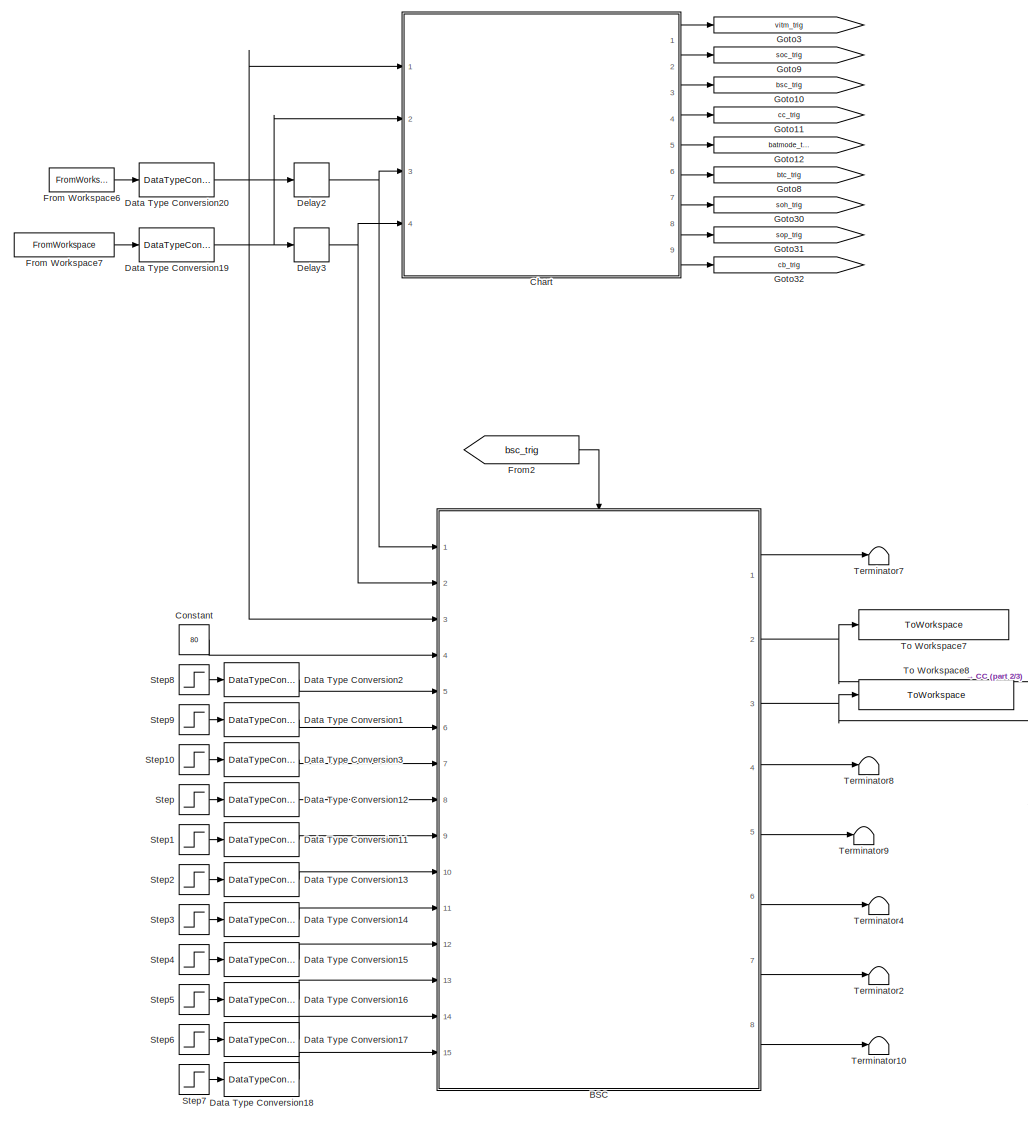
[diagram: root canvas - part 1/3, left side, full height]
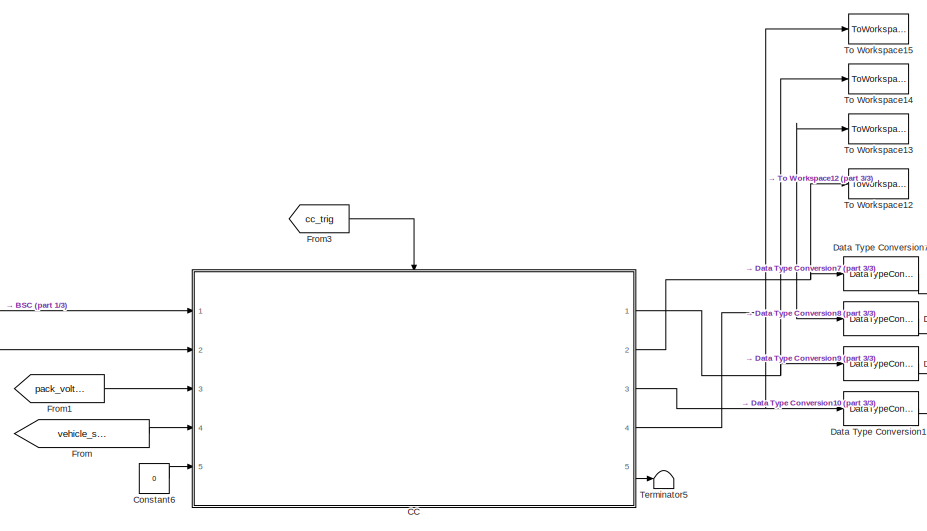
[diagram: root canvas - part 2/3, central region]
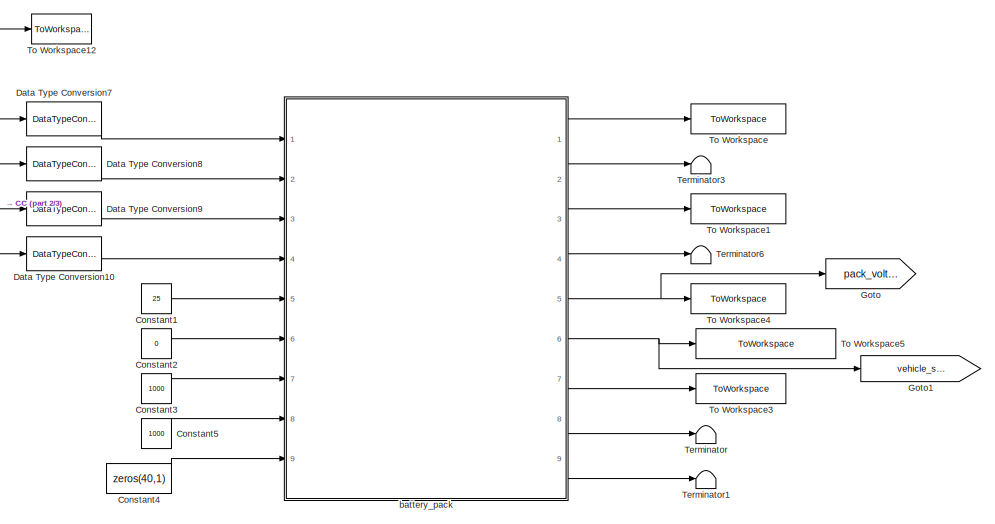
[diagram: root canvas - part 3/3, bottom right region]
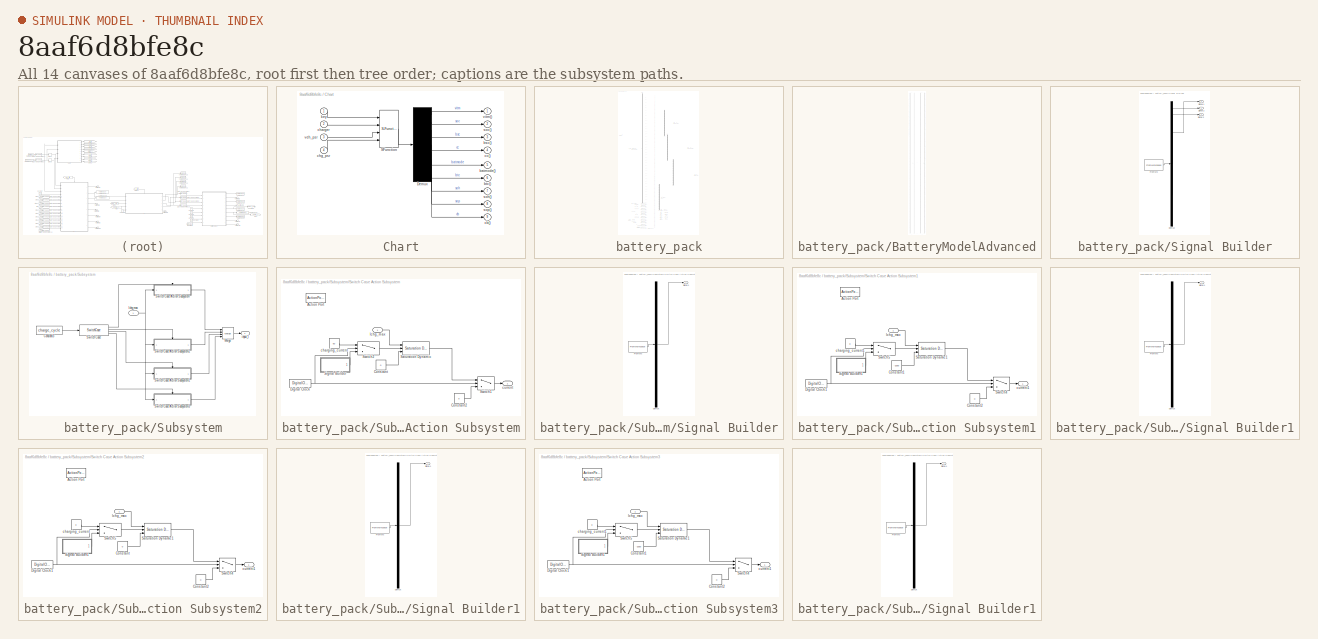
[diagram: thumbnail index - all 14 canvases of the model, root first then tree order]
MODEL slx_8aaf6d8bfe8c
KIND model
CONFIG AbsTol = auto
CONFIG FixedStep = 0.1
CONFIG MaxStep = auto
CONFIG MinStep = auto
CONFIG RelTol = 1e-3
CONFIG SampleTimeConstraint = Unconstrained
CONFIG Solver = ode4
CONFIG SolverMode = Auto
CONFIG SolverName = ode4
CONFIG StartTime = 0.0
CONFIG StopTime = final_time
BLOCK [ModelReference] BSC
  CopyOfModelName = BSC.slx
  ModelNameDialog = BSC.slx
  ModelReferenceVersion = 1.220
  Ports = [15, 8, 0, 1]
  TriggerPortName = Trigger
  TriggerPortStatesWhenEnabling = held
  TriggerPortTriggerType = function-call
  Variant = off
BLOCK [ModelReference] CC
  CopyOfModelName = CC.slx
  ModelNameDialog = CC.slx
  ModelReferenceVersion = 1.108
  Ports = [5, 5, 0, 1]
  TriggerPortName = Trigger
  TriggerPortStatesWhenEnabling = held
  TriggerPortTriggerType = function-call
  Variant = off
BLOCK [SubSystem] Chart
  ErrorFcn = Stateflow.Translate.translate
  PermitHierarchicalResolution = ExplicitOnly
  Ports = [4, 9]
  RequestExecContextInheritance = off
  SFBlockType = Chart
  TreatAsAtomicUnit = on
  Variant = off
BLOCK [Demux] Chart/ Demux 
  Outputs = 9
  Ports = [1, 9]
BLOCK [S-Function] Chart/ SFunction 
  EnableBusSupport = on
  FunctionName = sf_sfun
  PortCounts = [4 1]
  Ports = [4, 1]
  SFunctionDeploymentMode = off
  Tag = Stateflow S-Function test_case_generation_SOC 3
BLOCK [Outport] Chart/batmode()
  IconDisplay = Port number
  Port = 5
BLOCK [Outport] Chart/bsc()
  IconDisplay = Port number
  Port = 3
BLOCK [Outport] Chart/btc()
  IconDisplay = Port number
  Port = 6
BLOCK [Outport] Chart/cb()
  IconDisplay = Port number
  Port = 9
BLOCK [Outport] Chart/cc()
  IconDisplay = Port number
  Port = 4
BLOCK [Inport] Chart/charger
  IconDisplay = Port number
  Port = 2
BLOCK [Inport] Chart/chg_psr
  IconDisplay = Port number
  Port = 4
BLOCK [Inport] Chart/key
  IconDisplay = Port number
BLOCK [Outport] Chart/soc()
  IconDisplay = Port number
  Port = 2
BLOCK [Outport] Chart/soh()
  IconDisplay = Port number
  Port = 7
BLOCK [Outport] Chart/sop()
  IconDisplay = Port number
  Port = 8
BLOCK [Inport] Chart/veh_psr
  IconDisplay = Port number
  Port = 3
BLOCK [Outport] Chart/vitm()
  IconDisplay = Port number
BLOCK [Constant] Constant
  Value = 80
BLOCK [Constant] Constant1
  Value = 25
BLOCK [Constant] Constant2
  Value = 0
BLOCK [Constant] Constant3
  Value = 1000
BLOCK [Constant] Constant4
  Value = zeros(40,1)
BLOCK [Constant] Constant5
  Value = 1000
BLOCK [Constant] Constant6
  Value = 0
BLOCK [DataTypeConversion] Data Type Conversion1
  OutDataTypeStr = uint8
  RndMeth = Floor
  SaturateOnIntegerOverflow = off
BLOCK [DataTypeConversion] Data Type Conversion10
  RndMeth = Floor
  SaturateOnIntegerOverflow = off
BLOCK [DataTypeConversion] Data Type Conversion11
  OutDataTypeStr = uint8
  RndMeth = Floor
  SaturateOnIntegerOverflow = off
BLOCK [DataTypeConversion] Data Type Conversion12
  OutDataTypeStr = uint8
  RndMeth = Floor
  SaturateOnIntegerOverflow = off
BLOCK [DataTypeConversion] Data Type Conversion13
  OutDataTypeStr = uint8
  RndMeth = Floor
  SaturateOnIntegerOverflow = off
BLOCK [DataTypeConversion] Data Type Conversion14
  OutDataTypeStr = uint8
  RndMeth = Floor
  SaturateOnIntegerOverflow = off
BLOCK [DataTypeConversion] Data Type Conversion15
  OutDataTypeStr = uint8
  RndMeth = Floor
  SaturateOnIntegerOverflow = off
BLOCK [DataTypeConversion] Data Type Conversion16
  OutDataTypeStr = uint8
  RndMeth = Floor
  SaturateOnIntegerOverflow = off
BLOCK [DataTypeConversion] Data Type Conversion17
  OutDataTypeStr = uint8
  RndMeth = Floor
  SaturateOnIntegerOverflow = off
BLOCK [DataTypeConversion] Data Type Conversion18
  OutDataTypeStr = uint8
  RndMeth = Floor
  SaturateOnIntegerOverflow = off
BLOCK [DataTypeConversion] Data Type Conversion19
  OutDataTypeStr = uint8
  RndMeth = Floor
  SaturateOnIntegerOverflow = off
BLOCK [DataTypeConversion] Data Type Conversion2
  OutDataTypeStr = uint8
  RndMeth = Floor
  SaturateOnIntegerOverflow = off
BLOCK [DataTypeConversion] Data Type Conversion20
  OutDataTypeStr = uint8
  RndMeth = Floor
  SaturateOnIntegerOverflow = off
BLOCK [DataTypeConversion] Data Type Conversion3
  OutDataTypeStr = uint8
  RndMeth = Floor
  SaturateOnIntegerOverflow = off
BLOCK [DataTypeConversion] Data Type Conversion7
  RndMeth = Floor
  SaturateOnIntegerOverflow = off
BLOCK [DataTypeConversion] Data Type Conversion8
  RndMeth = Floor
  SaturateOnIntegerOverflow = off
BLOCK [DataTypeConversion] Data Type Conversion9
  RndMeth = Floor
  SaturateOnIntegerOverflow = off
BLOCK [Delay] Delay2
  DelayLength = 0.2/0.1
  InputPortMap = u0
  Ports = [1, 1]
BLOCK [Delay] Delay3
  DelayLength = 0.2/0.1
  InputPortMap = u0
  Ports = [1, 1]
BLOCK [From] From
  GotoTag = vehicle_side_voltage
BLOCK [FromWorkspace] From Workspace6
  VariableName = key_data
  ZeroCross = on
BLOCK [FromWorkspace] From Workspace7
  VariableName = charger_button_data
  ZeroCross = on
BLOCK [From] From1
  GotoTag = pack_voltage
BLOCK [From] From2
  GotoTag = bsc_trig
BLOCK [From] From3
  GotoTag = cc_trig
BLOCK [Goto] Goto
  GotoTag = pack_voltage
BLOCK [Goto] Goto1
  GotoTag = vehicle_side_voltage
BLOCK [Goto] Goto10
  GotoTag = bsc_trig
BLOCK [Goto] Goto11
  GotoTag = cc_trig
BLOCK [Goto] Goto12
  GotoTag = batmode_trig
BLOCK [Goto] Goto3
  GotoTag = vitm_trig
BLOCK [Goto] Goto30
  GotoTag = soh_trig
BLOCK [Goto] Goto31
  GotoTag = sop_trig
BLOCK [Goto] Goto32
  GotoTag = cb_trig
BLOCK [Goto] Goto8
  GotoTag = btc_trig
BLOCK [Goto] Goto9
  GotoTag = soc_trig
BLOCK [Step] Step
  After = 0
  Time = 0
  VectorParams1D = off
BLOCK [Step] Step1
  After = 0
  Time = 0
  VectorParams1D = off
BLOCK [Step] Step10
  After = 0
  Time = 0
  VectorParams1D = off
BLOCK [Step] Step2
  After = 0
  Time = 0
  VectorParams1D = off
BLOCK [Step] Step3
  After = 0
  Time = 0
  VectorParams1D = off
BLOCK [Step] Step4
  After = 0
  Time = 0
  VectorParams1D = off
BLOCK [Step] Step5
  After = 0
  Time = 0
  VectorParams1D = off
BLOCK [Step] Step6
  After = 0
  Time = 0
  VectorParams1D = off
BLOCK [Step] Step7
  After = 0
  Time = 0
  VectorParams1D = off
BLOCK [Step] Step8
  After = 0
  Time = 0
  VectorParams1D = off
BLOCK [Step] Step9
  After = 0
  Time = 0
  VectorParams1D = off
BLOCK [Terminator] Terminator
BLOCK [Terminator] Terminator1
BLOCK [Terminator] Terminator10
BLOCK [Terminator] Terminator2
BLOCK [Terminator] Terminator3
BLOCK [Terminator] Terminator4
BLOCK [Terminator] Terminator5
BLOCK [Terminator] Terminator6
BLOCK [Terminator] Terminator7
BLOCK [Terminator] Terminator8
BLOCK [Terminator] Terminator9
BLOCK [ToWorkspace] To Workspace
  FixptAsFi = on
  MaxDataPoints = inf
  Ports = [1]
  SampleTime = -1
  Save2DSignal = 3-D array (concatenate along third dimension)
  SaveFormat = Timeseries
  VariableName = test_cell_voltages
BLOCK [ToWorkspace] To Workspace1
  FixptAsFi = on
  MaxDataPoints = inf
  Ports = [1]
  SampleTime = -1
  Save2DSignal = 3-D array (concatenate along third dimension)
  SaveFormat = Timeseries
  VariableName = test_original_soc
BLOCK [ToWorkspace] To Workspace12
  FixptAsFi = on
  MaxDataPoints = inf
  Ports = [1]
  SampleTime = -1
  Save2DSignal = 3-D array (concatenate along third dimension)
  SaveFormat = Timeseries
  VariableName = test_main_cc
BLOCK [ToWorkspace] To Workspace13
  FixptAsFi = on
  MaxDataPoints = inf
  Ports = [1]
  SampleTime = -1
  Save2DSignal = 3-D array (concatenate along third dimension)
  SaveFormat = Timeseries
  VariableName = test_pre_cc
BLOCK [ToWorkspace] To Workspace14
  FixptAsFi = on
  MaxDataPoints = inf
  Ports = [1]
  SampleTime = -1
  Save2DSignal = 3-D array (concatenate along third dimension)
  SaveFormat = Timeseries
  VariableName = test_cc_cmd
BLOCK [ToWorkspace] To Workspace15
  FixptAsFi = on
  MaxDataPoints = inf
  Ports = [1]
  SampleTime = -1
  Save2DSignal = 3-D array (concatenate along third dimension)
  SaveFormat = Timeseries
  VariableName = test_chg_cc
BLOCK [ToWorkspace] To Workspace3
  FixptAsFi = on
  MaxDataPoints = inf
  Ports = [1]
  SampleTime = -1
  Save2DSignal = 3-D array (concatenate along third dimension)
  SaveFormat = Timeseries
  VariableName = test_pack_current
BLOCK [ToWorkspace] To Workspace4
  FixptAsFi = on
  MaxDataPoints = inf
  Ports = [1]
  SampleTime = -1
  Save2DSignal = 3-D array (concatenate along third dimension)
  SaveFormat = Timeseries
  VariableName = test_pack_voltage
BLOCK [ToWorkspace] To Workspace5
  FixptAsFi = on
  MaxDataPoints = inf
  Ports = [1]
  SampleTime = -1
  Save2DSignal = 3-D array (concatenate along third dimension)
  SaveFormat = Timeseries
  VariableName = test_vehicle_side_voltage
BLOCK [ToWorkspace] To Workspace7
  FixptAsFi = on
  MaxDataPoints = inf
  Ports = [1]
  SampleTime = -1
  Save2DSignal = 3-D array (concatenate along third dimension)
  SaveFormat = Timeseries
  VariableName = test_bsc_main_contactor_cmd
BLOCK [ToWorkspace] To Workspace8
  FixptAsFi = on
  MaxDataPoints = inf
  Ports = [1]
  SampleTime = -1
  Save2DSignal = 3-D array (concatenate along third dimension)
  SaveFormat = Timeseries
  VariableName = test_bsc_charger_contactor_cmd
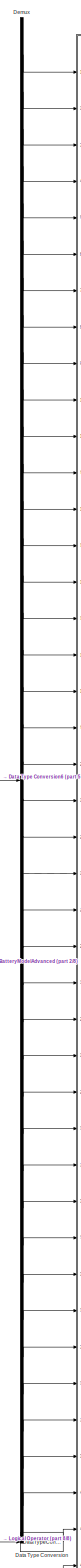
[diagram: battery_pack - part 1/8, left side, full height]
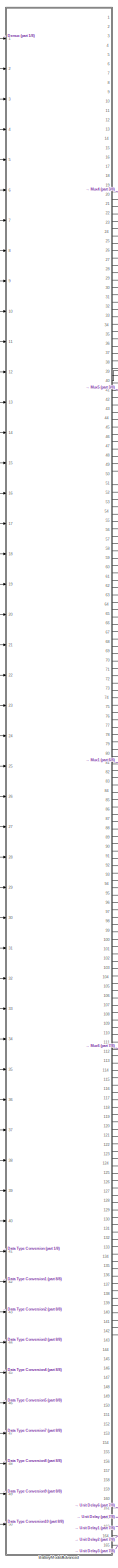
[diagram: battery_pack - part 2/8, center side, full height]
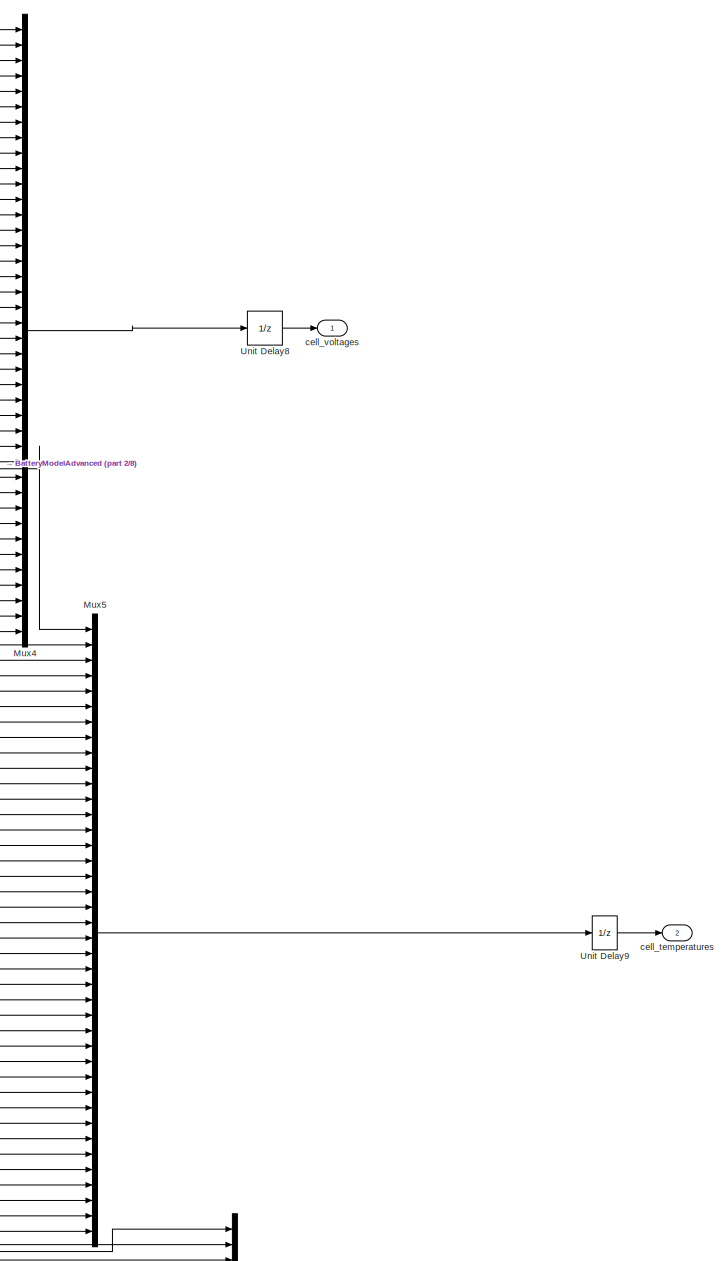
[diagram: battery_pack - part 3/8, top right region]
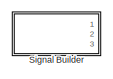
[diagram: battery_pack - part 4/8, top left region]
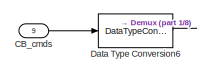
[diagram: battery_pack - part 5/8, middle left region]
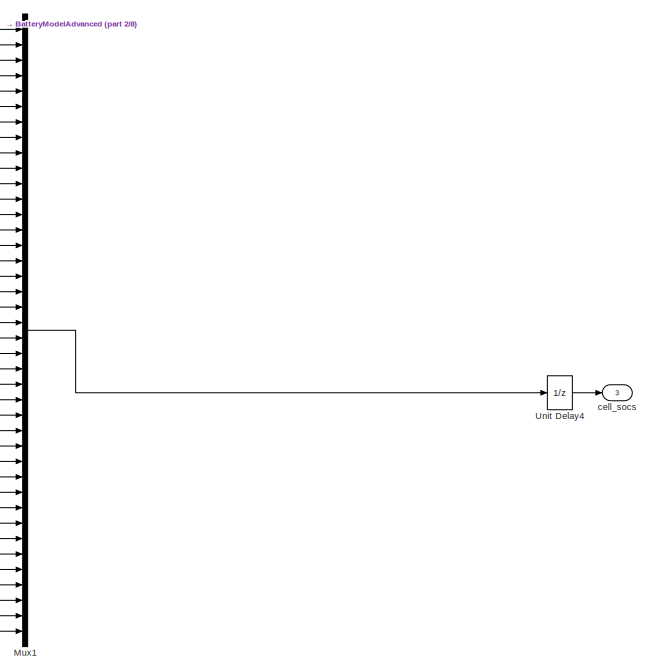
[diagram: battery_pack - part 6/8, middle right region]
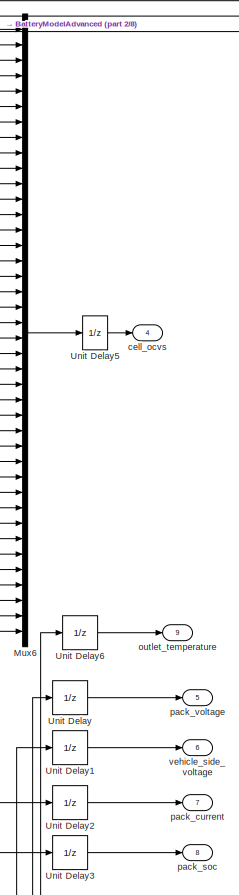
[diagram: battery_pack - part 7/8, bottom center region]
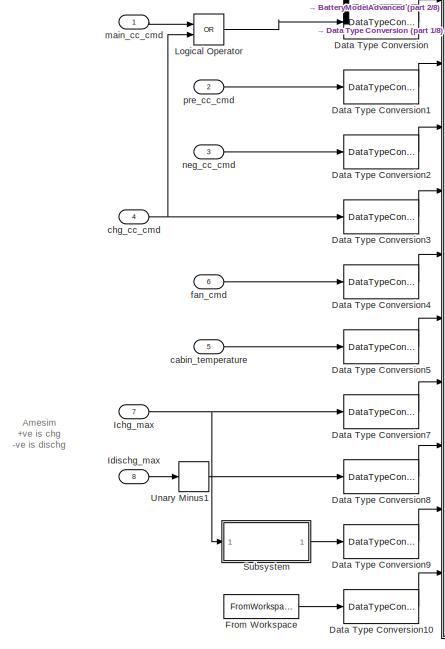
[diagram: battery_pack - part 8/8, bottom left region]
BLOCK [SubSystem] battery_pack
  Ports = [9, 9]
  RequestExecContextInheritance = off
  Variant = off
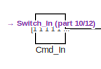
[diagram: battery_pack/BatteryModelAdvanced - part 1/12, top left region]
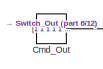
[diagram: battery_pack/BatteryModelAdvanced - part 2/12, top right region]
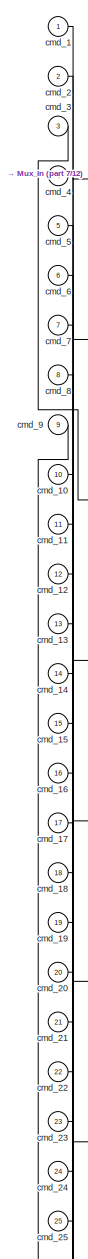
[diagram: battery_pack/BatteryModelAdvanced - part 3/12, top left region]
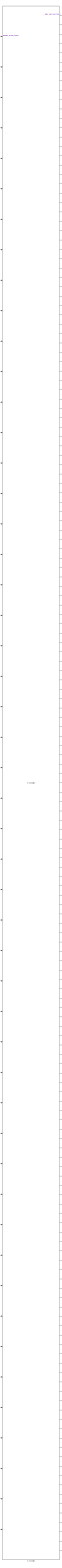
[diagram: battery_pack/BatteryModelAdvanced - part 4/12, center side, full height]
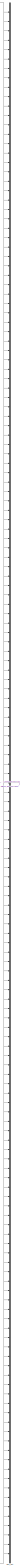
[diagram: battery_pack/BatteryModelAdvanced - part 5/12, right side, full height]
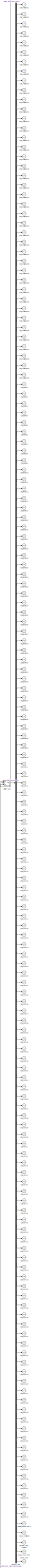
[diagram: battery_pack/BatteryModelAdvanced - part 6/12, right side, full height]
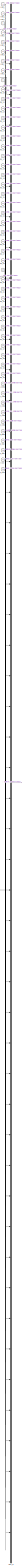
[diagram: battery_pack/BatteryModelAdvanced - part 7/12, left side, full height]
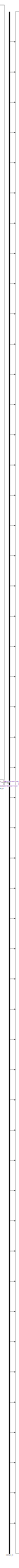
[diagram: battery_pack/BatteryModelAdvanced - part 8/12, center side, full height]
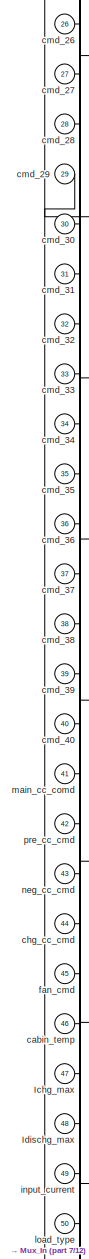
[diagram: battery_pack/BatteryModelAdvanced - part 9/12, top left region]
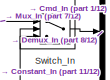
[diagram: battery_pack/BatteryModelAdvanced - part 10/12, middle left region]
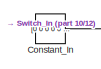
[diagram: battery_pack/BatteryModelAdvanced - part 11/12, bottom left region]
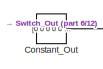
[diagram: battery_pack/BatteryModelAdvanced - part 12/12, bottom right region]
BLOCK [SubSystem] battery_pack/BatteryModelAdvanced
  DeleteFcn = AMESimLib_deleteBlock
  InitFcn = AMESimLib_initBlock
  OpenFcn = AMESimLib_openBlock('AME2SLCoSim')
  Ports = [50, 165]
  RequestExecContextInheritance = off
  ShowPortLabels = FromPortBlockName
  StartFcn = AMESimLib_startBlock
  StopFcn = AMESimLib_stopBlock
  Tag = AME2SLCoSim
  UserDataPersistent = on
  Variant = off
BLOCK [Outport] battery_pack/BatteryModelAdvanced/Cell_Voltage1
  IconDisplay = Port number
BLOCK [Outport] battery_pack/BatteryModelAdvanced/Cell_Voltage10
  IconDisplay = Port number
  Port = 10
BLOCK [Outport] battery_pack/BatteryModelAdvanced/Cell_Voltage11
  IconDisplay = Port number
  Port = 11
BLOCK [Outport] battery_pack/BatteryModelAdvanced/Cell_Voltage12
  IconDisplay = Port number
  Port = 12
BLOCK [Outport] battery_pack/BatteryModelAdvanced/Cell_Voltage13
  IconDisplay = Port number
  Port = 13
BLOCK [Outport] battery_pack/BatteryModelAdvanced/Cell_Voltage14
  IconDisplay = Port number
  Port = 14
BLOCK [Outport] battery_pack/BatteryModelAdvanced/Cell_Voltage15
  IconDisplay = Port number
  Port = 15
BLOCK [Outport] battery_pack/BatteryModelAdvanced/Cell_Voltage16
  IconDisplay = Port number
  Port = 16
BLOCK [Outport] battery_pack/BatteryModelAdvanced/Cell_Voltage17
  IconDisplay = Port number
  Port = 17
BLOCK [Outport] battery_pack/BatteryModelAdvanced/Cell_Voltage18
  IconDisplay = Port number
  Port = 18
BLOCK [Outport] battery_pack/BatteryModelAdvanced/Cell_Voltage19
  IconDisplay = Port number
  Port = 19
BLOCK [Outport] battery_pack/BatteryModelAdvanced/Cell_Voltage2
  IconDisplay = Port number
  Port = 2
BLOCK [Outport] battery_pack/BatteryModelAdvanced/Cell_Voltage20
  IconDisplay = Port number
  Port = 20
BLOCK [Outport] battery_pack/BatteryModelAdvanced/Cell_Voltage21
  IconDisplay = Port number
  Port = 21
BLOCK [Outport] battery_pack/BatteryModelAdvanced/Cell_Voltage22
  IconDisplay = Port number
  Port = 22
BLOCK [Outport] battery_pack/BatteryModelAdvanced/Cell_Voltage23
  IconDisplay = Port number
  Port = 23
BLOCK [Outport] battery_pack/BatteryModelAdvanced/Cell_Voltage24
  IconDisplay = Port number
  Port = 24
BLOCK [Outport] battery_pack/BatteryModelAdvanced/Cell_Voltage25
  IconDisplay = Port number
  Port = 25
BLOCK [Outport] battery_pack/BatteryModelAdvanced/Cell_Voltage26
  IconDisplay = Port number
  Port = 26
BLOCK [Outport] battery_pack/BatteryModelAdvanced/Cell_Voltage27
  IconDisplay = Port number
  Port = 27
BLOCK [Outport] battery_pack/BatteryModelAdvanced/Cell_Voltage28
  IconDisplay = Port number
  Port = 28
BLOCK [Outport] battery_pack/BatteryModelAdvanced/Cell_Voltage29
  IconDisplay = Port number
  Port = 29
BLOCK [Outport] battery_pack/BatteryModelAdvanced/Cell_Voltage3
  IconDisplay = Port number
  Port = 3
BLOCK [Outport] battery_pack/BatteryModelAdvanced/Cell_Voltage30
  IconDisplay = Port number
  Port = 30
BLOCK [Outport] battery_pack/BatteryModelAdvanced/Cell_Voltage31
  IconDisplay = Port number
  Port = 31
BLOCK [Outport] battery_pack/BatteryModelAdvanced/Cell_Voltage32
  IconDisplay = Port number
  Port = 32
BLOCK [Outport] battery_pack/BatteryModelAdvanced/Cell_Voltage33
  IconDisplay = Port number
  Port = 33
BLOCK [Outport] battery_pack/BatteryModelAdvanced/Cell_Voltage34
  IconDisplay = Port number
  Port = 34
BLOCK [Outport] battery_pack/BatteryModelAdvanced/Cell_Voltage35
  IconDisplay = Port number
  Port = 35
BLOCK [Outport] battery_pack/BatteryModelAdvanced/Cell_Voltage36
  IconDisplay = Port number
  Port = 36
BLOCK [Outport] battery_pack/BatteryModelAdvanced/Cell_Voltage37
  IconDisplay = Port number
  Port = 37
BLOCK [Outport] battery_pack/BatteryModelAdvanced/Cell_Voltage38
  IconDisplay = Port number
  Port = 38
BLOCK [Outport] battery_pack/BatteryModelAdvanced/Cell_Voltage39
  IconDisplay = Port number
  Port = 39
BLOCK [Outport] battery_pack/BatteryModelAdvanced/Cell_Voltage4
  IconDisplay = Port number
  Port = 4
BLOCK [Outport] battery_pack/BatteryModelAdvanced/Cell_Voltage40
  IconDisplay = Port number
  Port = 40
BLOCK [Outport] battery_pack/BatteryModelAdvanced/Cell_Voltage5
  IconDisplay = Port number
  Port = 5
BLOCK [Outport] battery_pack/BatteryModelAdvanced/Cell_Voltage6
  IconDisplay = Port number
  Port = 6
BLOCK [Outport] battery_pack/BatteryModelAdvanced/Cell_Voltage7
  IconDisplay = Port number
  Port = 7
BLOCK [Outport] battery_pack/BatteryModelAdvanced/Cell_Voltage8
  IconDisplay = Port number
  Port = 8
BLOCK [Outport] battery_pack/BatteryModelAdvanced/Cell_Voltage9
  IconDisplay = Port number
  Port = 9
BLOCK [Outport] battery_pack/BatteryModelAdvanced/Cell_ocv1
  IconDisplay = Port number
  Port = 121
BLOCK [Outport] battery_pack/BatteryModelAdvanced/Cell_ocv10
  IconDisplay = Port number
  Port = 130
BLOCK [Outport] battery_pack/BatteryModelAdvanced/Cell_ocv11
  IconDisplay = Port number
  Port = 131
BLOCK [Outport] battery_pack/BatteryModelAdvanced/Cell_ocv12
  IconDisplay = Port number
  Port = 132
BLOCK [Outport] battery_pack/BatteryModelAdvanced/Cell_ocv13
  IconDisplay = Port number
  Port = 133
BLOCK [Outport] battery_pack/BatteryModelAdvanced/Cell_ocv14
  IconDisplay = Port number
  Port = 134
BLOCK [Outport] battery_pack/BatteryModelAdvanced/Cell_ocv15
  IconDisplay = Port number
  Port = 135
BLOCK [Outport] battery_pack/BatteryModelAdvanced/Cell_ocv16
  IconDisplay = Port number
  Port = 136
BLOCK [Outport] battery_pack/BatteryModelAdvanced/Cell_ocv17
  IconDisplay = Port number
  Port = 137
BLOCK [Outport] battery_pack/BatteryModelAdvanced/Cell_ocv18
  IconDisplay = Port number
  Port = 138
BLOCK [Outport] battery_pack/BatteryModelAdvanced/Cell_ocv19
  IconDisplay = Port number
  Port = 139
BLOCK [Outport] battery_pack/BatteryModelAdvanced/Cell_ocv2
  IconDisplay = Port number
  Port = 122
BLOCK [Outport] battery_pack/BatteryModelAdvanced/Cell_ocv20
  IconDisplay = Port number
  Port = 140
BLOCK [Outport] battery_pack/BatteryModelAdvanced/Cell_ocv21
  IconDisplay = Port number
  Port = 141
BLOCK [Outport] battery_pack/BatteryModelAdvanced/Cell_ocv22
  IconDisplay = Port number
  Port = 142
BLOCK [Outport] battery_pack/BatteryModelAdvanced/Cell_ocv23
  IconDisplay = Port number
  Port = 143
BLOCK [Outport] battery_pack/BatteryModelAdvanced/Cell_ocv24
  IconDisplay = Port number
  Port = 144
BLOCK [Outport] battery_pack/BatteryModelAdvanced/Cell_ocv25
  IconDisplay = Port number
  Port = 145
BLOCK [Outport] battery_pack/BatteryModelAdvanced/Cell_ocv26
  IconDisplay = Port number
  Port = 146
BLOCK [Outport] battery_pack/BatteryModelAdvanced/Cell_ocv27
  IconDisplay = Port number
  Port = 147
BLOCK [Outport] battery_pack/BatteryModelAdvanced/Cell_ocv28
  IconDisplay = Port number
  Port = 148
BLOCK [Outport] battery_pack/BatteryModelAdvanced/Cell_ocv29
  IconDisplay = Port number
  Port = 149
BLOCK [Outport] battery_pack/BatteryModelAdvanced/Cell_ocv3
  IconDisplay = Port number
  Port = 123
BLOCK [Outport] battery_pack/BatteryModelAdvanced/Cell_ocv30
  IconDisplay = Port number
  Port = 150
BLOCK [Outport] battery_pack/BatteryModelAdvanced/Cell_ocv31
  IconDisplay = Port number
  Port = 151
BLOCK [Outport] battery_pack/BatteryModelAdvanced/Cell_ocv32
  IconDisplay = Port number
  Port = 152
BLOCK [Outport] battery_pack/BatteryModelAdvanced/Cell_ocv33
  IconDisplay = Port number
  Port = 153
BLOCK [Outport] battery_pack/BatteryModelAdvanced/Cell_ocv34
  IconDisplay = Port number
  Port = 154
BLOCK [Outport] battery_pack/BatteryModelAdvanced/Cell_ocv35
  IconDisplay = Port number
  Port = 155
BLOCK [Outport] battery_pack/BatteryModelAdvanced/Cell_ocv36
  IconDisplay = Port number
  Port = 156
BLOCK [Outport] battery_pack/BatteryModelAdvanced/Cell_ocv37
  IconDisplay = Port number
  Port = 157
BLOCK [Outport] battery_pack/BatteryModelAdvanced/Cell_ocv38
  IconDisplay = Port number
  Port = 158
BLOCK [Outport] battery_pack/BatteryModelAdvanced/Cell_ocv39
  IconDisplay = Port number
  Port = 159
BLOCK [Outport] battery_pack/BatteryModelAdvanced/Cell_ocv4
  IconDisplay = Port number
  Port = 124
BLOCK [Outport] battery_pack/BatteryModelAdvanced/Cell_ocv40
  IconDisplay = Port number
  Port = 160
BLOCK [Outport] battery_pack/BatteryModelAdvanced/Cell_ocv5
  IconDisplay = Port number
  Port = 125
BLOCK [Outport] battery_pack/BatteryModelAdvanced/Cell_ocv6
  IconDisplay = Port number
  Port = 126
BLOCK [Outport] battery_pack/BatteryModelAdvanced/Cell_ocv7
  IconDisplay = Port number
  Port = 127
BLOCK [Outport] battery_pack/BatteryModelAdvanced/Cell_ocv8
  IconDisplay = Port number
  Port = 128
BLOCK [Outport] battery_pack/BatteryModelAdvanced/Cell_ocv9
  IconDisplay = Port number
  Port = 129
BLOCK [Outport] battery_pack/BatteryModelAdvanced/Cell_soc1
  IconDisplay = Port number
  Port = 81
BLOCK [Outport] battery_pack/BatteryModelAdvanced/Cell_soc10
  IconDisplay = Port number
  Port = 90
BLOCK [Outport] battery_pack/BatteryModelAdvanced/Cell_soc11
  IconDisplay = Port number
  Port = 91
BLOCK [Outport] battery_pack/BatteryModelAdvanced/Cell_soc12
  IconDisplay = Port number
  Port = 92
BLOCK [Outport] battery_pack/BatteryModelAdvanced/Cell_soc13
  IconDisplay = Port number
  Port = 93
BLOCK [Outport] battery_pack/BatteryModelAdvanced/Cell_soc14
  IconDisplay = Port number
  Port = 94
BLOCK [Outport] battery_pack/BatteryModelAdvanced/Cell_soc15
  IconDisplay = Port number
  Port = 95
BLOCK [Outport] battery_pack/BatteryModelAdvanced/Cell_soc16
  IconDisplay = Port number
  Port = 96
BLOCK [Outport] battery_pack/BatteryModelAdvanced/Cell_soc17
  IconDisplay = Port number
  Port = 97
BLOCK [Outport] battery_pack/BatteryModelAdvanced/Cell_soc18
  IconDisplay = Port number
  Port = 98
BLOCK [Outport] battery_pack/BatteryModelAdvanced/Cell_soc19
  IconDisplay = Port number
  Port = 99
BLOCK [Outport] battery_pack/BatteryModelAdvanced/Cell_soc2
  IconDisplay = Port number
  Port = 82
BLOCK [Outport] battery_pack/BatteryModelAdvanced/Cell_soc20
  IconDisplay = Port number
  Port = 100
BLOCK [Outport] battery_pack/BatteryModelAdvanced/Cell_soc21
  IconDisplay = Port number
  Port = 101
BLOCK [Outport] battery_pack/BatteryModelAdvanced/Cell_soc22
  IconDisplay = Port number
  Port = 102
BLOCK [Outport] battery_pack/BatteryModelAdvanced/Cell_soc23
  IconDisplay = Port number
  Port = 103
BLOCK [Outport] battery_pack/BatteryModelAdvanced/Cell_soc24
  IconDisplay = Port number
  Port = 104
BLOCK [Outport] battery_pack/BatteryModelAdvanced/Cell_soc25
  IconDisplay = Port number
  Port = 105
BLOCK [Outport] battery_pack/BatteryModelAdvanced/Cell_soc26
  IconDisplay = Port number
  Port = 106
BLOCK [Outport] battery_pack/BatteryModelAdvanced/Cell_soc27
  IconDisplay = Port number
  Port = 107
BLOCK [Outport] battery_pack/BatteryModelAdvanced/Cell_soc28
  IconDisplay = Port number
  Port = 108
BLOCK [Outport] battery_pack/BatteryModelAdvanced/Cell_soc29
  IconDisplay = Port number
  Port = 109
BLOCK [Outport] battery_pack/BatteryModelAdvanced/Cell_soc3
  IconDisplay = Port number
  Port = 83
BLOCK [Outport] battery_pack/BatteryModelAdvanced/Cell_soc30
  IconDisplay = Port number
  Port = 110
BLOCK [Outport] battery_pack/BatteryModelAdvanced/Cell_soc31
  IconDisplay = Port number
  Port = 111
BLOCK [Outport] battery_pack/BatteryModelAdvanced/Cell_soc32
  IconDisplay = Port number
  Port = 112
BLOCK [Outport] battery_pack/BatteryModelAdvanced/Cell_soc33
  IconDisplay = Port number
  Port = 113
BLOCK [Outport] battery_pack/BatteryModelAdvanced/Cell_soc34
  IconDisplay = Port number
  Port = 114
BLOCK [Outport] battery_pack/BatteryModelAdvanced/Cell_soc35
  IconDisplay = Port number
  Port = 115
BLOCK [Outport] battery_pack/BatteryModelAdvanced/Cell_soc36
  IconDisplay = Port number
  Port = 116
BLOCK [Outport] battery_pack/BatteryModelAdvanced/Cell_soc37
  IconDisplay = Port number
  Port = 117
BLOCK [Outport] battery_pack/BatteryModelAdvanced/Cell_soc38
  IconDisplay = Port number
  Port = 118
BLOCK [Outport] battery_pack/BatteryModelAdvanced/Cell_soc39
  IconDisplay = Port number
  Port = 119
BLOCK [Outport] battery_pack/BatteryModelAdvanced/Cell_soc4
  IconDisplay = Port number
  Port = 84
BLOCK [Outport] battery_pack/BatteryModelAdvanced/Cell_soc40
  IconDisplay = Port number
  Port = 120
BLOCK [Outport] battery_pack/BatteryModelAdvanced/Cell_soc5
  IconDisplay = Port number
  Port = 85
BLOCK [Outport] battery_pack/BatteryModelAdvanced/Cell_soc6
  IconDisplay = Port number
  Port = 86
BLOCK [Outport] battery_pack/BatteryModelAdvanced/Cell_soc7
  IconDisplay = Port number
  Port = 87
BLOCK [Outport] battery_pack/BatteryModelAdvanced/Cell_soc8
  IconDisplay = Port number
  Port = 88
BLOCK [Outport] battery_pack/BatteryModelAdvanced/Cell_soc9
  IconDisplay = Port number
  Port = 89
BLOCK [Outport] battery_pack/BatteryModelAdvanced/Cell_temp1
  IconDisplay = Port number
  Port = 41
BLOCK [Outport] battery_pack/BatteryModelAdvanced/Cell_temp10
  IconDisplay = Port number
  Port = 50
BLOCK [Outport] battery_pack/BatteryModelAdvanced/Cell_temp11
  IconDisplay = Port number
  Port = 51
BLOCK [Outport] battery_pack/BatteryModelAdvanced/Cell_temp12
  IconDisplay = Port number
  Port = 52
BLOCK [Outport] battery_pack/BatteryModelAdvanced/Cell_temp13
  IconDisplay = Port number
  Port = 53
BLOCK [Outport] battery_pack/BatteryModelAdvanced/Cell_temp14
  IconDisplay = Port number
  Port = 54
BLOCK [Outport] battery_pack/BatteryModelAdvanced/Cell_temp15
  IconDisplay = Port number
  Port = 55
BLOCK [Outport] battery_pack/BatteryModelAdvanced/Cell_temp16
  IconDisplay = Port number
  Port = 56
BLOCK [Outport] battery_pack/BatteryModelAdvanced/Cell_temp17
  IconDisplay = Port number
  Port = 57
BLOCK [Outport] battery_pack/BatteryModelAdvanced/Cell_temp18
  IconDisplay = Port number
  Port = 58
BLOCK [Outport] battery_pack/BatteryModelAdvanced/Cell_temp19
  IconDisplay = Port number
  Port = 59
BLOCK [Outport] battery_pack/BatteryModelAdvanced/Cell_temp2
  IconDisplay = Port number
  Port = 42
BLOCK [Outport] battery_pack/BatteryModelAdvanced/Cell_temp20
  IconDisplay = Port number
  Port = 60
BLOCK [Outport] battery_pack/BatteryModelAdvanced/Cell_temp21
  IconDisplay = Port number
  Port = 61
BLOCK [Outport] battery_pack/BatteryModelAdvanced/Cell_temp22
  IconDisplay = Port number
  Port = 62
BLOCK [Outport] battery_pack/BatteryModelAdvanced/Cell_temp23
  IconDisplay = Port number
  Port = 63
BLOCK [Outport] battery_pack/BatteryModelAdvanced/Cell_temp24
  IconDisplay = Port number
  Port = 64
BLOCK [Outport] battery_pack/BatteryModelAdvanced/Cell_temp25
  IconDisplay = Port number
  Port = 65
BLOCK [Outport] battery_pack/BatteryModelAdvanced/Cell_temp26
  IconDisplay = Port number
  Port = 66
BLOCK [Outport] battery_pack/BatteryModelAdvanced/Cell_temp27
  IconDisplay = Port number
  Port = 67
BLOCK [Outport] battery_pack/BatteryModelAdvanced/Cell_temp28
  IconDisplay = Port number
  Port = 68
BLOCK [Outport] battery_pack/BatteryModelAdvanced/Cell_temp29
  IconDisplay = Port number
  Port = 69
BLOCK [Outport] battery_pack/BatteryModelAdvanced/Cell_temp3
  IconDisplay = Port number
  Port = 43
BLOCK [Outport] battery_pack/BatteryModelAdvanced/Cell_temp30
  IconDisplay = Port number
  Port = 70
BLOCK [Outport] battery_pack/BatteryModelAdvanced/Cell_temp31
  IconDisplay = Port number
  Port = 71
BLOCK [Outport] battery_pack/BatteryModelAdvanced/Cell_temp32
  IconDisplay = Port number
  Port = 72
BLOCK [Outport] battery_pack/BatteryModelAdvanced/Cell_temp33
  IconDisplay = Port number
  Port = 73
BLOCK [Outport] battery_pack/BatteryModelAdvanced/Cell_temp34
  IconDisplay = Port number
  Port = 74
BLOCK [Outport] battery_pack/BatteryModelAdvanced/Cell_temp35
  IconDisplay = Port number
  Port = 75
BLOCK [Outport] battery_pack/BatteryModelAdvanced/Cell_temp36
  IconDisplay = Port number
  Port = 76
BLOCK [Outport] battery_pack/BatteryModelAdvanced/Cell_temp37
  IconDisplay = Port number
  Port = 77
BLOCK [Outport] battery_pack/BatteryModelAdvanced/Cell_temp38
  IconDisplay = Port number
  Port = 78
BLOCK [Outport] battery_pack/BatteryModelAdvanced/Cell_temp39
  IconDisplay = Port number
  Port = 79
BLOCK [Outport] battery_pack/BatteryModelAdvanced/Cell_temp4
  IconDisplay = Port number
  Port = 44
BLOCK [Outport] battery_pack/BatteryModelAdvanced/Cell_temp40
  IconDisplay = Port number
  Port = 80
BLOCK [Outport] battery_pack/BatteryModelAdvanced/Cell_temp5
  IconDisplay = Port number
  Port = 45
BLOCK [Outport] battery_pack/BatteryModelAdvanced/Cell_temp6
  IconDisplay = Port number
  Port = 46
BLOCK [Outport] battery_pack/BatteryModelAdvanced/Cell_temp7
  IconDisplay = Port number
  Port = 47
BLOCK [Outport] battery_pack/BatteryModelAdvanced/Cell_temp8
  IconDisplay = Port number
  Port = 48
BLOCK [Outport] battery_pack/BatteryModelAdvanced/Cell_temp9
  IconDisplay = Port number
  Port = 49
BLOCK [Constant] battery_pack/BatteryModelAdvanced/Cmd_In
  Value = [1 1 1 1 1 1 1 1 1 1 1 1 1 1 1 1 1 1 1 1 1 1 1 1 1 1 1 1 1 1 1 1 1 1 1 1 1 1 1 1 1 1 1 1 1 1 1 1 1 1]
BLOCK [Constant] battery_pack/BatteryModelAdvanced/Cmd_Out
  Value = [1 1 1 1 1 1 1 1 1 1 1 1 1 1 1 1 1 1 1 1 1 1 1 1 1 1 1 1 1 1 1 1 1 1 1 1 1 1 1 1 1 1 1 1 1 1 1 1 1 1 1 1 1 1 1 1 1 1 1 1 1 1 1 1 1 1 1 1 1 1 1 1 1 1 1 1 1 1 1 1 1 1 1 1 1 1 1 1 1 1 1 1 1 1 1 1 1 1 1 1 1 1 1 1 1 1 1 1 1 1 1 1 1 1 1 1 1 1 1 1 1 1 1 1 1 1 1 1 1 1 1 1 1 1 1 1 1 1 1 1 1 1 1 1 1 1 1 1 1 1 1 1 1 1 1 1 1 1 1 1 1 1 1 1 1]
BLOCK [Constant] battery_pack/BatteryModelAdvanced/Constant_In
  Value = [0 0 0 0 0 0 0 0 0 0 0 0 0 0 0 0 0 0 0 0 0 0 0 0 0 0 0 0 0 0 0 0 0 0 0 0 0 0 0 0 0 0 0 0 0 0 0 0 0 0]
BLOCK [Constant] battery_pack/BatteryModelAdvanced/Constant_Out
  Value = [0 0 0 0 0 0 0 0 0 0 0 0 0 0 0 0 0 0 0 0 0 0 0 0 0 0 0 0 0 0 0 0 0 0 0 0 0 0 0 0 0 0 0 0 0 0 0 0 0 0 0 0 0 0 0 0 0 0 0 0 0 0 0 0 0 0 0 0 0 0 0 0 0 0 0 0 0 0 0 0 0 0 0 0 0 0 0 0 0 0 0 0 0 0 0 0 0 0 0 0 0 0 0 0 0 0 0 0 0 0 0 0 0 0 0 0 0 0 0 0 0 0 0 0 0 0 0 0 0 0 0 0 0 0 0 0 0 0 0 0 0 0 0 0 0 0 0 0 0 0 0 0 0 0 0 0 0 0 0 0 0 0 0 0 0]
BLOCK [Demux] battery_pack/BatteryModelAdvanced/Demux_In
  DisplayOption = bar
  Outputs = 50
  Ports = [1, 50]
BLOCK [Demux] battery_pack/BatteryModelAdvanced/Demux_Out
  DisplayOption = bar
  Outputs = 165
  Ports = [1, 165]
BLOCK [Inport] battery_pack/BatteryModelAdvanced/Ichg_max
  IconDisplay = Port number
  Port = 47
BLOCK [Inport] battery_pack/BatteryModelAdvanced/Idischg_max
  IconDisplay = Port number
  Port = 48
BLOCK [Mux] battery_pack/BatteryModelAdvanced/Mux_In
  DisplayOption = bar
  Inputs = 50
  Ports = [50, 1]
BLOCK [Mux] battery_pack/BatteryModelAdvanced/Mux_Out
  DisplayOption = bar
  Inputs = 165
  Ports = [165, 1]
BLOCK [S-Function] battery_pack/BatteryModelAdvanced/S-Function
  EnableBusSupport = off
  FunctionName = BatteryModelAdvanced_
  InitFcn = clear BatteryModelAdvanced_
  Parameters = [0.1;0.1;1e-06;0.1;100;0;0;2;0;1;0.001;0;1] ['tcase             ';'dcell             ';'Lcell             ';'Rcell             ';'Dcell2cell        ';'Tair              ';'cell_capacity     ';'initial_sohc      ';'initial_sohr      ';'balance_resistor  ';'Initial_SOC       ';'imbalance_cell_soc';'load_cycle_type   '] [5;2.009e-06;206;37;77;35;8;100;100;1;50;50;0] [] [] ['cycle_name'] ['Drive_Cycle...<+15ch>
  Ports = [50, 165]
  SFunctionDeploymentMode = off
  StopFcn = clear BatteryModelAdvanced_
BLOCK [Switch] battery_pack/BatteryModelAdvanced/Switch_In
  Threshold = 0.5
BLOCK [Switch] battery_pack/BatteryModelAdvanced/Switch_Out
  Threshold = 0.5
BLOCK [Inport] battery_pack/BatteryModelAdvanced/cabin_temp
  IconDisplay = Port number
  Port = 46
BLOCK [Inport] battery_pack/BatteryModelAdvanced/chg_cc_cmd
  IconDisplay = Port number
  Port = 44
BLOCK [Inport] battery_pack/BatteryModelAdvanced/cmd_1
  IconDisplay = Port number
BLOCK [Inport] battery_pack/BatteryModelAdvanced/cmd_10
  IconDisplay = Port number
  Port = 10
BLOCK [Inport] battery_pack/BatteryModelAdvanced/cmd_11
  IconDisplay = Port number
  Port = 11
BLOCK [Inport] battery_pack/BatteryModelAdvanced/cmd_12
  IconDisplay = Port number
  Port = 12
BLOCK [Inport] battery_pack/BatteryModelAdvanced/cmd_13
  IconDisplay = Port number
  Port = 13
BLOCK [Inport] battery_pack/BatteryModelAdvanced/cmd_14
  IconDisplay = Port number
  Port = 14
BLOCK [Inport] battery_pack/BatteryModelAdvanced/cmd_15
  IconDisplay = Port number
  Port = 15
BLOCK [Inport] battery_pack/BatteryModelAdvanced/cmd_16
  IconDisplay = Port number
  Port = 16
BLOCK [Inport] battery_pack/BatteryModelAdvanced/cmd_17
  IconDisplay = Port number
  Port = 17
BLOCK [Inport] battery_pack/BatteryModelAdvanced/cmd_18
  IconDisplay = Port number
  Port = 18
BLOCK [Inport] battery_pack/BatteryModelAdvanced/cmd_19
  IconDisplay = Port number
  Port = 19
BLOCK [Inport] battery_pack/BatteryModelAdvanced/cmd_2
  IconDisplay = Port number
  Port = 2
BLOCK [Inport] battery_pack/BatteryModelAdvanced/cmd_20
  IconDisplay = Port number
  Port = 20
BLOCK [Inport] battery_pack/BatteryModelAdvanced/cmd_21
  IconDisplay = Port number
  Port = 21
BLOCK [Inport] battery_pack/BatteryModelAdvanced/cmd_22
  IconDisplay = Port number
  Port = 22
BLOCK [Inport] battery_pack/BatteryModelAdvanced/cmd_23
  IconDisplay = Port number
  Port = 23
BLOCK [Inport] battery_pack/BatteryModelAdvanced/cmd_24
  IconDisplay = Port number
  Port = 24
BLOCK [Inport] battery_pack/BatteryModelAdvanced/cmd_25
  IconDisplay = Port number
  Port = 25
BLOCK [Inport] battery_pack/BatteryModelAdvanced/cmd_26
  IconDisplay = Port number
  Port = 26
BLOCK [Inport] battery_pack/BatteryModelAdvanced/cmd_27
  IconDisplay = Port number
  Port = 27
BLOCK [Inport] battery_pack/BatteryModelAdvanced/cmd_28
  IconDisplay = Port number
  Port = 28
BLOCK [Inport] battery_pack/BatteryModelAdvanced/cmd_29
  IconDisplay = Port number
  Port = 29
BLOCK [Inport] battery_pack/BatteryModelAdvanced/cmd_3
  IconDisplay = Port number
  Port = 3
BLOCK [Inport] battery_pack/BatteryModelAdvanced/cmd_30
  IconDisplay = Port number
  Port = 30
BLOCK [Inport] battery_pack/BatteryModelAdvanced/cmd_31
  IconDisplay = Port number
  Port = 31
BLOCK [Inport] battery_pack/BatteryModelAdvanced/cmd_32
  IconDisplay = Port number
  Port = 32
BLOCK [Inport] battery_pack/BatteryModelAdvanced/cmd_33
  IconDisplay = Port number
  Port = 33
BLOCK [Inport] battery_pack/BatteryModelAdvanced/cmd_34
  IconDisplay = Port number
  Port = 34
BLOCK [Inport] battery_pack/BatteryModelAdvanced/cmd_35
  IconDisplay = Port number
  Port = 35
BLOCK [Inport] battery_pack/BatteryModelAdvanced/cmd_36
  IconDisplay = Port number
  Port = 36
BLOCK [Inport] battery_pack/BatteryModelAdvanced/cmd_37
  IconDisplay = Port number
  Port = 37
BLOCK [Inport] battery_pack/BatteryModelAdvanced/cmd_38
  IconDisplay = Port number
  Port = 38
BLOCK [Inport] battery_pack/BatteryModelAdvanced/cmd_39
  IconDisplay = Port number
  Port = 39
BLOCK [Inport] battery_pack/BatteryModelAdvanced/cmd_4
  IconDisplay = Port number
  Port = 4
BLOCK [Inport] battery_pack/BatteryModelAdvanced/cmd_40
  IconDisplay = Port number
  Port = 40
BLOCK [Inport] battery_pack/BatteryModelAdvanced/cmd_5
  IconDisplay = Port number
  Port = 5
BLOCK [Inport] battery_pack/BatteryModelAdvanced/cmd_6
  IconDisplay = Port number
  Port = 6
BLOCK [Inport] battery_pack/BatteryModelAdvanced/cmd_7
  IconDisplay = Port number
  Port = 7
BLOCK [Inport] battery_pack/BatteryModelAdvanced/cmd_8
  IconDisplay = Port number
  Port = 8
BLOCK [Inport] battery_pack/BatteryModelAdvanced/cmd_9
  IconDisplay = Port number
  Port = 9
BLOCK [Inport] battery_pack/BatteryModelAdvanced/fan_cmd
  IconDisplay = Port number
  Port = 45
BLOCK [Inport] battery_pack/BatteryModelAdvanced/input_current
  IconDisplay = Port number
  Port = 49
BLOCK [Inport] battery_pack/BatteryModelAdvanced/load_type
  IconDisplay = Port number
  Port = 50
BLOCK [Inport] battery_pack/BatteryModelAdvanced/main_cc_comd
  IconDisplay = Port number
  Port = 41
BLOCK [Inport] battery_pack/BatteryModelAdvanced/neg_cc_cmd
  IconDisplay = Port number
  Port = 43
BLOCK [Outport] battery_pack/BatteryModelAdvanced/outlet_temperature
  IconDisplay = Port number
  Port = 161
BLOCK [Outport] battery_pack/BatteryModelAdvanced/pack_current
  IconDisplay = Port number
  Port = 164
BLOCK [Outport] battery_pack/BatteryModelAdvanced/pack_soc
  IconDisplay = Port number
  Port = 165
BLOCK [Outport] battery_pack/BatteryModelAdvanced/pack_voltage
  IconDisplay = Port number
  Port = 162
BLOCK [Inport] battery_pack/BatteryModelAdvanced/pre_cc_cmd
  IconDisplay = Port number
  Port = 42
BLOCK [Outport] battery_pack/BatteryModelAdvanced/vehicle_side_voltage
  IconDisplay = Port number
  Port = 163
BLOCK [Inport] battery_pack/CB_cmds
  IconDisplay = Port number
  Port = 9
BLOCK [DataTypeConversion] battery_pack/Data Type Conversion
  RndMeth = Floor
  SaturateOnIntegerOverflow = off
BLOCK [DataTypeConversion] battery_pack/Data Type Conversion1
  RndMeth = Floor
  SaturateOnIntegerOverflow = off
BLOCK [DataTypeConversion] battery_pack/Data Type Conversion10
  RndMeth = Floor
  SaturateOnIntegerOverflow = off
BLOCK [DataTypeConversion] battery_pack/Data Type Conversion2
  RndMeth = Floor
  SaturateOnIntegerOverflow = off
BLOCK [DataTypeConversion] battery_pack/Data Type Conversion3
  RndMeth = Floor
  SaturateOnIntegerOverflow = off
BLOCK [DataTypeConversion] battery_pack/Data Type Conversion4
  RndMeth = Floor
  SaturateOnIntegerOverflow = off
BLOCK [DataTypeConversion] battery_pack/Data Type Conversion5
  RndMeth = Floor
  SaturateOnIntegerOverflow = off
BLOCK [DataTypeConversion] battery_pack/Data Type Conversion6
  RndMeth = Floor
  SaturateOnIntegerOverflow = off
BLOCK [DataTypeConversion] battery_pack/Data Type Conversion7
  RndMeth = Floor
  SaturateOnIntegerOverflow = off
BLOCK [DataTypeConversion] battery_pack/Data Type Conversion8
  RndMeth = Floor
  SaturateOnIntegerOverflow = off
BLOCK [DataTypeConversion] battery_pack/Data Type Conversion9
  RndMeth = Floor
  SaturateOnIntegerOverflow = off
BLOCK [Demux] battery_pack/Demux
  DisplayOption = bar
  Outputs = 40
  Ports = [1, 40]
BLOCK [FromWorkspace] battery_pack/From Workspace
  VariableName = loadcycle_type
  ZeroCross = on
BLOCK [Inport] battery_pack/Ichg_max
  IconDisplay = Port number
  Port = 7
BLOCK [Inport] battery_pack/Idischg_max
  IconDisplay = Port number
  Port = 8
BLOCK [Logic] battery_pack/Logical Operator
  AllPortsSameDT = off
  Operator = OR
  OutDataTypeStr = boolean
  Ports = [2, 1]
BLOCK [Mux] battery_pack/Mux1
  DisplayOption = bar
  Inputs = 40
  Ports = [40, 1]
BLOCK [Mux] battery_pack/Mux4
  DisplayOption = bar
  Inputs = 40
  Ports = [40, 1]
BLOCK [Mux] battery_pack/Mux5
  DisplayOption = bar
  Inputs = 40
  Ports = [40, 1]
BLOCK [Mux] battery_pack/Mux6
  DisplayOption = bar
  Inputs = 40
  Ports = [40, 1]
BLOCK [SubSystem] battery_pack/Signal Builder
  ClipboardFcn = sigbuilder_block('clipboard');
  CloseFcn = sigbuilder_block('close');
  Commented = on
  ContinueFcn = sigbuilder_block('continue');
  CopyFcn = sigbuilder_block('copy');
  DeleteFcn = sigbuilder_block('delete');
  LoadFcn = sigbuilder_block('load');
  MaskHideContents = on
  ModelCloseFcn = sigbuilder_block('modelClose');
  NameChangeFcn = sigbuilder_block('namechange');
  OpenFcn = sigbuilder_block('open',[5.4 5.4 1141.2 580.8 ]);
  PauseFcn = sigbuilder_block('pause');
  Ports = [0, 3]
  PreSaveFcn = sigbuilder_block('preSave');
  RequestExecContextInheritance = off
  StartFcn = sigbuilder_block('start');
  StopFcn = sigbuilder_block('stop');
  Tag = STV Subsys
  Variant = off
BLOCK [Demux] battery_pack/Signal Builder/Demux
  Outputs = 3
  Ports = [1, 3]
  Tag = STV Demux
BLOCK [FromWorkspace] battery_pack/Signal Builder/FromWs
  SampleTime = 0
  Tag = STV FromWs
  VariableName = tuvar
  ZeroCross = on
BLOCK [Outport] battery_pack/Signal Builder/Signal 1
  IconDisplay = Port number
  Tag = STV Outport
BLOCK [Outport] battery_pack/Signal Builder/Signal 2
  IconDisplay = Port number
  Port = 2
  Tag = STV Outport
BLOCK [Outport] battery_pack/Signal Builder/Signal 3
  IconDisplay = Port number
  Port = 3
  Tag = STV Outport
BLOCK [SubSystem] battery_pack/Subsystem
  Ports = [1, 1]
  RequestExecContextInheritance = off
  Variant = off
BLOCK [Constant] battery_pack/Subsystem/Constant3
  SampleTime = BMSk_stepSize
  Value = charge_cycle
BLOCK [Inport] battery_pack/Subsystem/Ichg_max
  IconDisplay = Port number
BLOCK [Merge] battery_pack/Subsystem/Merge
  Inputs = 4
  Ports = [4, 1]
BLOCK [SwitchCase] battery_pack/Subsystem/Switch Case
  CaseConditions = {1,2,3,4}
  Ports = [1, 4]
  ShowDefaultCase = off
BLOCK [SubSystem] battery_pack/Subsystem/Switch Case Action Subsystem
  Ports = [1, 1, 0, 0, 0, 0, 0, 1]
  RequestExecContextInheritance = off
  TreatAsAtomicUnit = on
  Variant = off
BLOCK [ActionPort] battery_pack/Subsystem/Switch Case Action Subsystem/Action Port
  ActionType = case
BLOCK [Constant] battery_pack/Subsystem/Switch Case Action Subsystem/Constant
  SampleTime = BMSk_stepSize
  Value = 0
BLOCK [Constant] battery_pack/Subsystem/Switch Case Action Subsystem/Constant2
  SampleTime = BMSk_stepSize
  Value = 0
BLOCK [DigitalClock] battery_pack/Subsystem/Switch Case Action Subsystem/Digital Clock
  SampleTime = BMSk_stepSize
BLOCK [Inport] battery_pack/Subsystem/Switch Case Action Subsystem/Ichg_max
  IconDisplay = Port number
BLOCK [Reference] battery_pack/Subsystem/Switch Case Action Subsystem/Saturation Dynamic  REF=simulink/Discontinuities/Saturation
Dynamic
  Ports = [3, 1]
  SourceBlock = simulink/Discontinuities/Saturation\nDynamic
  SourceType = Saturation Dynamic
BLOCK [SubSystem] battery_pack/Subsystem/Switch Case Action Subsystem/Signal Builder
  ClipboardFcn = sigbuilder_block('clipboard');
  CloseFcn = sigbuilder_block('close');
  ContinueFcn = sigbuilder_block('continue');
  CopyFcn = sigbuilder_block('copy');
  DeleteFcn = sigbuilder_block('delete');
  LoadFcn = sigbuilder_block('load');
  MaskHideContents = on
  ModelCloseFcn = sigbuilder_block('modelClose');
  NameChangeFcn = sigbuilder_block('namechange');
  OpenFcn = sigbuilder_block('open',[445.8 137.4 550.8 400.2 ]);
  PauseFcn = sigbuilder_block('pause');
  Ports = [0, 1]
  PreSaveFcn = sigbuilder_block('preSave');
  RequestExecContextInheritance = off
  StartFcn = sigbuilder_block('start');
  StopFcn = sigbuilder_block('stop');
  Tag = STV Subsys
  Variant = off
BLOCK [Demux] battery_pack/Subsystem/Switch Case Action Subsystem/Signal Builder/Demux
  Outputs = 1
  Ports = [1, 1]
  Tag = STV Demux
BLOCK [FromWorkspace] battery_pack/Subsystem/Switch Case Action Subsystem/Signal Builder/FromWs
  SampleTime = BMSk_stepSize
  Tag = STV FromWs
  VariableName = tuvar
  ZeroCross = on
BLOCK [Outport] battery_pack/Subsystem/Switch Case Action Subsystem/Signal Builder/Signal 1
  IconDisplay = Port number
  Tag = STV Outport
BLOCK [Switch] battery_pack/Subsystem/Switch Case Action Subsystem/Switch1
  Criteria = u2 > Threshold
  InputSameDT = off
  SaturateOnIntegerOverflow = off
  Threshold = 20
BLOCK [Switch] battery_pack/Subsystem/Switch Case Action Subsystem/Switch2
  Criteria = u2 > Threshold
  InputSameDT = off
  SaturateOnIntegerOverflow = off
  Threshold = 70
BLOCK [Constant] battery_pack/Subsystem/Switch Case Action Subsystem/charging_current
  SampleTime = BMSk_stepSize
  Value = 60
BLOCK [Outport] battery_pack/Subsystem/Switch Case Action Subsystem/current
  IconDisplay = Port number
BLOCK [SubSystem] battery_pack/Subsystem/Switch Case Action Subsystem1
  Ports = [1, 1, 0, 0, 0, 0, 0, 1]
  RequestExecContextInheritance = off
  TreatAsAtomicUnit = on
  Variant = off
BLOCK [ActionPort] battery_pack/Subsystem/Switch Case Action Subsystem1/Action Port
  ActionType = case
BLOCK [Constant] battery_pack/Subsystem/Switch Case Action Subsystem1/Constant1
  SampleTime = BMSk_stepSize
  Value = -1000
BLOCK [Constant] battery_pack/Subsystem/Switch Case Action Subsystem1/Constant2
  SampleTime = BMSk_stepSize
  Value = 0
BLOCK [DigitalClock] battery_pack/Subsystem/Switch Case Action Subsystem1/Digital Clock1
  SampleTime = BMSk_stepSize
BLOCK [Inport] battery_pack/Subsystem/Switch Case Action Subsystem1/Ichg_max
  IconDisplay = Port number
BLOCK [Reference] battery_pack/Subsystem/Switch Case Action Subsystem1/Saturation Dynamic1  REF=simulink/Discontinuities/Saturation
Dynamic
  Ports = [3, 1]
  SourceBlock = simulink/Discontinuities/Saturation\nDynamic
  SourceType = Saturation Dynamic
BLOCK [SubSystem] battery_pack/Subsystem/Switch Case Action Subsystem1/Signal Builder1
  ClipboardFcn = sigbuilder_block('clipboard');
  CloseFcn = sigbuilder_block('close');
  ContinueFcn = sigbuilder_block('continue');
  CopyFcn = sigbuilder_block('copy');
  DeleteFcn = sigbuilder_block('delete');
  LoadFcn = sigbuilder_block('load');
  MaskHideContents = on
  ModelCloseFcn = sigbuilder_block('modelClose');
  NameChangeFcn = sigbuilder_block('namechange');
  OpenFcn = sigbuilder_block('open',[445.8 137.4 550.8 400.2 ]);
  PauseFcn = sigbuilder_block('pause');
  Ports = [0, 1]
  PreSaveFcn = sigbuilder_block('preSave');
  RequestExecContextInheritance = off
  StartFcn = sigbuilder_block('start');
  StopFcn = sigbuilder_block('stop');
  Tag = STV Subsys
  Variant = off
BLOCK [Demux] battery_pack/Subsystem/Switch Case Action Subsystem1/Signal Builder1/Demux
  Outputs = 1
  Ports = [1, 1]
  Tag = STV Demux
BLOCK [FromWorkspace] battery_pack/Subsystem/Switch Case Action Subsystem1/Signal Builder1/FromWs
  SampleTime = BMSk_stepSize
  Tag = STV FromWs
  VariableName = tuvar
  ZeroCross = on
BLOCK [Outport] battery_pack/Subsystem/Switch Case Action Subsystem1/Signal Builder1/Signal 1
  IconDisplay = Port number
  Tag = STV Outport
BLOCK [Switch] battery_pack/Subsystem/Switch Case Action Subsystem1/Switch4
  Criteria = u2 > Threshold
  InputSameDT = off
  SaturateOnIntegerOverflow = off
  Threshold = 20
BLOCK [Switch] battery_pack/Subsystem/Switch Case Action Subsystem1/Switch5
  Criteria = u2 > Threshold
  InputSameDT = off
  SaturateOnIntegerOverflow = off
  Threshold = 22
BLOCK [Constant] battery_pack/Subsystem/Switch Case Action Subsystem1/charging_current1
  SampleTime = BMSk_stepSize
  Value = 0
BLOCK [Outport] battery_pack/Subsystem/Switch Case Action Subsystem1/current1
  IconDisplay = Port number
BLOCK [SubSystem] battery_pack/Subsystem/Switch Case Action Subsystem2
  Ports = [1, 1, 0, 0, 0, 0, 0, 1]
  RequestExecContextInheritance = off
  TreatAsAtomicUnit = on
  Variant = off
BLOCK [ActionPort] battery_pack/Subsystem/Switch Case Action Subsystem2/Action Port
  ActionType = case
BLOCK [Constant] battery_pack/Subsystem/Switch Case Action Subsystem2/Constant
  SampleTime = BMSk_stepSize
  Value = 0
BLOCK [Constant] battery_pack/Subsystem/Switch Case Action Subsystem2/Constant2
  SampleTime = BMSk_stepSize
  Value = 0
BLOCK [DigitalClock] battery_pack/Subsystem/Switch Case Action Subsystem2/Digital Clock1
  SampleTime = BMSk_stepSize
BLOCK [Inport] battery_pack/Subsystem/Switch Case Action Subsystem2/Ichg_max
  IconDisplay = Port number
BLOCK [Reference] battery_pack/Subsystem/Switch Case Action Subsystem2/Saturation Dynamic1  REF=simulink/Discontinuities/Saturation
Dynamic
  Ports = [3, 1]
  SourceBlock = simulink/Discontinuities/Saturation\nDynamic
  SourceType = Saturation Dynamic
BLOCK [SubSystem] battery_pack/Subsystem/Switch Case Action Subsystem2/Signal Builder1
  ClipboardFcn = sigbuilder_block('clipboard');
  CloseFcn = sigbuilder_block('close');
  ContinueFcn = sigbuilder_block('continue');
  CopyFcn = sigbuilder_block('copy');
  DeleteFcn = sigbuilder_block('delete');
  LoadFcn = sigbuilder_block('load');
  MaskHideContents = on
  ModelCloseFcn = sigbuilder_block('modelClose');
  NameChangeFcn = sigbuilder_block('namechange');
  OpenFcn = sigbuilder_block('open',[445.8 137.4 550.8 400.2 ]);
  PauseFcn = sigbuilder_block('pause');
  Ports = [0, 1]
  PreSaveFcn = sigbuilder_block('preSave');
  RequestExecContextInheritance = off
  StartFcn = sigbuilder_block('start');
  StopFcn = sigbuilder_block('stop');
  Tag = STV Subsys
  Variant = off
BLOCK [Demux] battery_pack/Subsystem/Switch Case Action Subsystem2/Signal Builder1/Demux
  Outputs = 1
  Ports = [1, 1]
  Tag = STV Demux
BLOCK [FromWorkspace] battery_pack/Subsystem/Switch Case Action Subsystem2/Signal Builder1/FromWs
  SampleTime = BMSk_stepSize
  Tag = STV FromWs
  VariableName = tuvar
  ZeroCross = on
BLOCK [Outport] battery_pack/Subsystem/Switch Case Action Subsystem2/Signal Builder1/Signal 1
  IconDisplay = Port number
  Tag = STV Outport
BLOCK [Switch] battery_pack/Subsystem/Switch Case Action Subsystem2/Switch4
  Criteria = u2 > Threshold
  InputSameDT = off
  SaturateOnIntegerOverflow = off
  Threshold = 20
BLOCK [Switch] battery_pack/Subsystem/Switch Case Action Subsystem2/Switch5
  Criteria = u2 > Threshold
  InputSameDT = off
  SaturateOnIntegerOverflow = off
  Threshold = 70
BLOCK [Constant] battery_pack/Subsystem/Switch Case Action Subsystem2/charging_current
  SampleTime = BMSk_stepSize
  Value = 0
BLOCK [Outport] battery_pack/Subsystem/Switch Case Action Subsystem2/current1
  IconDisplay = Port number
BLOCK [SubSystem] battery_pack/Subsystem/Switch Case Action Subsystem3
  Ports = [1, 1, 0, 0, 0, 0, 0, 1]
  RequestExecContextInheritance = off
  TreatAsAtomicUnit = on
  Variant = off
BLOCK [ActionPort] battery_pack/Subsystem/Switch Case Action Subsystem3/Action Port
  ActionType = case
BLOCK [Constant] battery_pack/Subsystem/Switch Case Action Subsystem3/Constant1
  SampleTime = BMSk_stepSize
  Value = -1000
BLOCK [Constant] battery_pack/Subsystem/Switch Case Action Subsystem3/Constant2
  SampleTime = BMSk_stepSize
  Value = 0
BLOCK [DigitalClock] battery_pack/Subsystem/Switch Case Action Subsystem3/Digital Clock1
  SampleTime = BMSk_stepSize
BLOCK [Inport] battery_pack/Subsystem/Switch Case Action Subsystem3/Ichg_max
  IconDisplay = Port number
BLOCK [Reference] battery_pack/Subsystem/Switch Case Action Subsystem3/Saturation Dynamic1  REF=simulink/Discontinuities/Saturation
Dynamic
  Ports = [3, 1]
  SourceBlock = simulink/Discontinuities/Saturation\nDynamic
  SourceType = Saturation Dynamic
BLOCK [SubSystem] battery_pack/Subsystem/Switch Case Action Subsystem3/Signal Builder1
  ClipboardFcn = sigbuilder_block('clipboard');
  CloseFcn = sigbuilder_block('close');
  ContinueFcn = sigbuilder_block('continue');
  CopyFcn = sigbuilder_block('copy');
  DeleteFcn = sigbuilder_block('delete');
  LoadFcn = sigbuilder_block('load');
  MaskHideContents = on
  ModelCloseFcn = sigbuilder_block('modelClose');
  NameChangeFcn = sigbuilder_block('namechange');
  OpenFcn = sigbuilder_block('open',[445.8 137.4 550.8 400.2 ]);
  PauseFcn = sigbuilder_block('pause');
  Ports = [0, 1]
  PreSaveFcn = sigbuilder_block('preSave');
  RequestExecContextInheritance = off
  StartFcn = sigbuilder_block('start');
  StopFcn = sigbuilder_block('stop');
  Tag = STV Subsys
  Variant = off
BLOCK [Demux] battery_pack/Subsystem/Switch Case Action Subsystem3/Signal Builder1/Demux
  Outputs = 1
  Ports = [1, 1]
  Tag = STV Demux
BLOCK [FromWorkspace] battery_pack/Subsystem/Switch Case Action Subsystem3/Signal Builder1/FromWs
  SampleTime = BMSk_stepSize
  Tag = STV FromWs
  VariableName = tuvar
  ZeroCross = on
BLOCK [Outport] battery_pack/Subsystem/Switch Case Action Subsystem3/Signal Builder1/Signal 1
  IconDisplay = Port number
  Tag = STV Outport
BLOCK [Switch] battery_pack/Subsystem/Switch Case Action Subsystem3/Switch4
  Criteria = u2 > Threshold
  InputSameDT = off
  SaturateOnIntegerOverflow = off
  Threshold = 20
BLOCK [Switch] battery_pack/Subsystem/Switch Case Action Subsystem3/Switch5
  Criteria = u2 > Threshold
  InputSameDT = off
  SaturateOnIntegerOverflow = off
  Threshold = 22
BLOCK [Constant] battery_pack/Subsystem/Switch Case Action Subsystem3/charging_current1
  SampleTime = BMSk_stepSize
  Value = 0
BLOCK [Outport] battery_pack/Subsystem/Switch Case Action Subsystem3/current1
  IconDisplay = Port number
BLOCK [Outport] battery_pack/Subsystem/input_I
  IconDisplay = Port number
BLOCK [UnaryMinus] battery_pack/Unary Minus1
BLOCK [UnitDelay] battery_pack/Unit Delay
  InitialCondition = initial_pack_voltage
  InputProcessing = Elements as channels (sample based)
  SampleTime = pack_voltage_sampling
BLOCK [UnitDelay] battery_pack/Unit Delay1
  InitialCondition = initial_vehicle_side_voltage
  InputProcessing = Elements as channels (sample based)
  SampleTime = vehicle_side_voltage_sampling
BLOCK [UnitDelay] battery_pack/Unit Delay2
  InitialCondition = initial_pack_current
  InputProcessing = Elements as channels (sample based)
  SampleTime = pack_current_sampling
BLOCK [UnitDelay] battery_pack/Unit Delay3
  InitialCondition = initial_pack_soc
  InputProcessing = Elements as channels (sample based)
  SampleTime = pack_soc_sampling
BLOCK [UnitDelay] battery_pack/Unit Delay4
  InitialCondition = initial_cell_socs
  InputProcessing = Elements as channels (sample based)
  SampleTime = cell_socs_sampling
BLOCK [UnitDelay] battery_pack/Unit Delay5
  InitialCondition = initial_cell_ocvs
  InputProcessing = Elements as channels (sample based)
  SampleTime = cell_ocvs_sampling
BLOCK [UnitDelay] battery_pack/Unit Delay6
  InitialCondition = inital_outlet_temperature
  InputProcessing = Elements as channels (sample based)
  SampleTime = pack_voltage_sampling
BLOCK [UnitDelay] battery_pack/Unit Delay8
  InitialCondition = initial_cell_voltages
  InputProcessing = Elements as channels (sample based)
  SampleTime = cell_voltages_sampling
BLOCK [UnitDelay] battery_pack/Unit Delay9
  InitialCondition = initial_cell_temps
  InputProcessing = Elements as channels (sample based)
  SampleTime = cell_temps_sampling
BLOCK [Inport] battery_pack/cabin_temperature
  IconDisplay = Port number
  Port = 5
BLOCK [Outport] battery_pack/cell_ocvs
  IconDisplay = Port number
  Port = 4
BLOCK [Outport] battery_pack/cell_socs
  IconDisplay = Port number
  Port = 3
BLOCK [Outport] battery_pack/cell_temperatures
  IconDisplay = Port number
  Port = 2
BLOCK [Outport] battery_pack/cell_voltages
  IconDisplay = Port number
BLOCK [Inport] battery_pack/chg_cc_cmd
  IconDisplay = Port number
  Port = 4
BLOCK [Inport] battery_pack/fan_cmd
  IconDisplay = Port number
  Port = 6
BLOCK [Inport] battery_pack/main_cc_cmd
  IconDisplay = Port number
BLOCK [Inport] battery_pack/neg_cc_cmd
  IconDisplay = Port number
  Port = 3
BLOCK [Outport] battery_pack/outlet_temperature
  IconDisplay = Port number
  Port = 9
BLOCK [Outport] battery_pack/pack_current
  IconDisplay = Port number
  Port = 7
BLOCK [Outport] battery_pack/pack_soc
  IconDisplay = Port number
  Port = 8
BLOCK [Outport] battery_pack/pack_voltage
  IconDisplay = Port number
  Port = 5
BLOCK [Inport] battery_pack/pre_cc_cmd
  IconDisplay = Port number
  Port = 2
BLOCK [Outport] battery_pack/vehicle_side_voltage
  IconDisplay = Port number
  Port = 6
ANNOTATION battery_pack: Amesim +ve is chg -ve is dischg
LINE BSC:1 -> Terminator7:1
NET BSC:2 -> CC:1, To Workspace7:1
NET BSC:3 -> CC:2, To Workspace8:1
LINE BSC:4 -> Terminator8:1
LINE BSC:5 -> Terminator9:1
LINE BSC:6 -> Terminator4:1
LINE BSC:7 -> Terminator2:1
LINE BSC:8 -> Terminator10:1
NET CC:1 -> Data Type Conversion9:1, To Workspace14:1
NET CC:2 -> Data Type Conversion7:1, To Workspace12:1
NET CC:3 -> Data Type Conversion10:1, To Workspace15:1
NET CC:4 -> Data Type Conversion8:1, To Workspace13:1
LINE CC:5 -> Terminator5:1
LINE Chart:1 -> Goto3:1
LINE Chart:2 -> Goto9:1
LINE Chart:3 -> Goto10:1
LINE Chart:4 -> Goto11:1
LINE Chart:5 -> Goto12:1
LINE Chart:6 -> Goto8:1
LINE Chart:7 -> Goto30:1
LINE Chart:8 -> Goto31:1
LINE Chart:9 -> Goto32:1
LINE Constant1:1 -> battery_pack:5
LINE Constant2:1 -> battery_pack:6
LINE Constant3:1 -> battery_pack:7
LINE Constant4:1 -> battery_pack:9
LINE Constant5:1 -> battery_pack:8
LINE Constant6:1 -> CC:5
LINE Constant:1 -> BSC:4
LINE Data Type Conversion10:1 -> battery_pack:4
LINE Data Type Conversion11:1 -> BSC:9
LINE Data Type Conversion12:1 -> BSC:8
LINE Data Type Conversion13:1 -> BSC:10
LINE Data Type Conversion14:1 -> BSC:11
LINE Data Type Conversion15:1 -> BSC:12
LINE Data Type Conversion16:1 -> BSC:13
LINE Data Type Conversion17:1 -> BSC:14
LINE Data Type Conversion18:1 -> BSC:15
NET Data Type Conversion19:1 -> Chart:2, Delay3:1
LINE Data Type Conversion1:1 -> BSC:6
NET Data Type Conversion20:1 -> BSC:3, Chart:1, Delay2:1
LINE Data Type Conversion2:1 -> BSC:5
LINE Data Type Conversion3:1 -> BSC:7
LINE Data Type Conversion7:1 -> battery_pack:1
LINE Data Type Conversion8:1 -> battery_pack:2
LINE Data Type Conversion9:1 -> battery_pack:3
NET Delay2:1 -> BSC:1, Chart:3
NET Delay3:1 -> BSC:2, Chart:4
LINE From Workspace6:1 -> Data Type Conversion20:1
LINE From Workspace7:1 -> Data Type Conversion19:1
LINE From1:1 -> CC:3
LINE From2:1 -> BSC:trigger
LINE From3:1 -> CC:trigger
LINE From:1 -> CC:4
LINE Step10:1 -> Data Type Conversion3:1
LINE Step1:1 -> Data Type Conversion11:1
LINE Step2:1 -> Data Type Conversion13:1
LINE Step3:1 -> Data Type Conversion14:1
LINE Step4:1 -> Data Type Conversion15:1
LINE Step5:1 -> Data Type Conversion16:1
LINE Step6:1 -> Data Type Conversion17:1
LINE Step7:1 -> Data Type Conversion18:1
LINE Step8:1 -> Data Type Conversion2:1
LINE Step9:1 -> Data Type Conversion1:1
LINE Step:1 -> Data Type Conversion12:1
LINE battery_pack/BatteryModelAdvanced/Cmd_In:1 -> battery_pack/BatteryModelAdvanced/Switch_In:2
LINE battery_pack/BatteryModelAdvanced/Cmd_Out:1 -> battery_pack/BatteryModelAdvanced/Switch_Out:2
LINE battery_pack/BatteryModelAdvanced/Constant_In:1 -> battery_pack/BatteryModelAdvanced/Switch_In:3
LINE battery_pack/BatteryModelAdvanced/Constant_Out:1 -> battery_pack/BatteryModelAdvanced/Switch_Out:3
LINE battery_pack/BatteryModelAdvanced/Demux_In:1 -> battery_pack/BatteryModelAdvanced/S-Function:1
LINE battery_pack/BatteryModelAdvanced/Demux_In:10 -> battery_pack/BatteryModelAdvanced/S-Function:10
LINE battery_pack/BatteryModelAdvanced/Demux_In:11 -> battery_pack/BatteryModelAdvanced/S-Function:11
LINE battery_pack/BatteryModelAdvanced/Demux_In:12 -> battery_pack/BatteryModelAdvanced/S-Function:12
LINE battery_pack/BatteryModelAdvanced/Demux_In:13 -> battery_pack/BatteryModelAdvanced/S-Function:13
LINE battery_pack/BatteryModelAdvanced/Demux_In:14 -> battery_pack/BatteryModelAdvanced/S-Function:14
LINE battery_pack/BatteryModelAdvanced/Demux_In:15 -> battery_pack/BatteryModelAdvanced/S-Function:15
LINE battery_pack/BatteryModelAdvanced/Demux_In:16 -> battery_pack/BatteryModelAdvanced/S-Function:16
LINE battery_pack/BatteryModelAdvanced/Demux_In:17 -> battery_pack/BatteryModelAdvanced/S-Function:17
LINE battery_pack/BatteryModelAdvanced/Demux_In:18 -> battery_pack/BatteryModelAdvanced/S-Function:18
LINE battery_pack/BatteryModelAdvanced/Demux_In:19 -> battery_pack/BatteryModelAdvanced/S-Function:19
LINE battery_pack/BatteryModelAdvanced/Demux_In:2 -> battery_pack/BatteryModelAdvanced/S-Function:2
LINE battery_pack/BatteryModelAdvanced/Demux_In:20 -> battery_pack/BatteryModelAdvanced/S-Function:20
LINE battery_pack/BatteryModelAdvanced/Demux_In:21 -> battery_pack/BatteryModelAdvanced/S-Function:21
LINE battery_pack/BatteryModelAdvanced/Demux_In:22 -> battery_pack/BatteryModelAdvanced/S-Function:22
LINE battery_pack/BatteryModelAdvanced/Demux_In:23 -> battery_pack/BatteryModelAdvanced/S-Function:23
LINE battery_pack/BatteryModelAdvanced/Demux_In:24 -> battery_pack/BatteryModelAdvanced/S-Function:24
LINE battery_pack/BatteryModelAdvanced/Demux_In:25 -> battery_pack/BatteryModelAdvanced/S-Function:25
LINE battery_pack/BatteryModelAdvanced/Demux_In:26 -> battery_pack/BatteryModelAdvanced/S-Function:26
LINE battery_pack/BatteryModelAdvanced/Demux_In:27 -> battery_pack/BatteryModelAdvanced/S-Function:27
LINE battery_pack/BatteryModelAdvanced/Demux_In:28 -> battery_pack/BatteryModelAdvanced/S-Function:28
LINE battery_pack/BatteryModelAdvanced/Demux_In:29 -> battery_pack/BatteryModelAdvanced/S-Function:29
LINE battery_pack/BatteryModelAdvanced/Demux_In:3 -> battery_pack/BatteryModelAdvanced/S-Function:3
LINE battery_pack/BatteryModelAdvanced/Demux_In:30 -> battery_pack/BatteryModelAdvanced/S-Function:30
LINE battery_pack/BatteryModelAdvanced/Demux_In:31 -> battery_pack/BatteryModelAdvanced/S-Function:31
LINE battery_pack/BatteryModelAdvanced/Demux_In:32 -> battery_pack/BatteryModelAdvanced/S-Function:32
LINE battery_pack/BatteryModelAdvanced/Demux_In:33 -> battery_pack/BatteryModelAdvanced/S-Function:33
LINE battery_pack/BatteryModelAdvanced/Demux_In:34 -> battery_pack/BatteryModelAdvanced/S-Function:34
LINE battery_pack/BatteryModelAdvanced/Demux_In:35 -> battery_pack/BatteryModelAdvanced/S-Function:35
LINE battery_pack/BatteryModelAdvanced/Demux_In:36 -> battery_pack/BatteryModelAdvanced/S-Function:36
LINE battery_pack/BatteryModelAdvanced/Demux_In:37 -> battery_pack/BatteryModelAdvanced/S-Function:37
LINE battery_pack/BatteryModelAdvanced/Demux_In:38 -> battery_pack/BatteryModelAdvanced/S-Function:38
LINE battery_pack/BatteryModelAdvanced/Demux_In:39 -> battery_pack/BatteryModelAdvanced/S-Function:39
LINE battery_pack/BatteryModelAdvanced/Demux_In:4 -> battery_pack/BatteryModelAdvanced/S-Function:4
LINE battery_pack/BatteryModelAdvanced/Demux_In:40 -> battery_pack/BatteryModelAdvanced/S-Function:40
LINE battery_pack/BatteryModelAdvanced/Demux_In:41 -> battery_pack/BatteryModelAdvanced/S-Function:41
LINE battery_pack/BatteryModelAdvanced/Demux_In:42 -> battery_pack/BatteryModelAdvanced/S-Function:42
LINE battery_pack/BatteryModelAdvanced/Demux_In:43 -> battery_pack/BatteryModelAdvanced/S-Function:43
LINE battery_pack/BatteryModelAdvanced/Demux_In:44 -> battery_pack/BatteryModelAdvanced/S-Function:44
LINE battery_pack/BatteryModelAdvanced/Demux_In:45 -> battery_pack/BatteryModelAdvanced/S-Function:45
LINE battery_pack/BatteryModelAdvanced/Demux_In:46 -> battery_pack/BatteryModelAdvanced/S-Function:46
LINE battery_pack/BatteryModelAdvanced/Demux_In:47 -> battery_pack/BatteryModelAdvanced/S-Function:47
LINE battery_pack/BatteryModelAdvanced/Demux_In:48 -> battery_pack/BatteryModelAdvanced/S-Function:48
LINE battery_pack/BatteryModelAdvanced/Demux_In:49 -> battery_pack/BatteryModelAdvanced/S-Function:49
LINE battery_pack/BatteryModelAdvanced/Demux_In:5 -> battery_pack/BatteryModelAdvanced/S-Function:5
LINE battery_pack/BatteryModelAdvanced/Demux_In:50 -> battery_pack/BatteryModelAdvanced/S-Function:50
LINE battery_pack/BatteryModelAdvanced/Demux_In:6 -> battery_pack/BatteryModelAdvanced/S-Function:6
LINE battery_pack/BatteryModelAdvanced/Demux_In:7 -> battery_pack/BatteryModelAdvanced/S-Function:7
LINE battery_pack/BatteryModelAdvanced/Demux_In:8 -> battery_pack/BatteryModelAdvanced/S-Function:8
LINE battery_pack/BatteryModelAdvanced/Demux_In:9 -> battery_pack/BatteryModelAdvanced/S-Function:9
LINE battery_pack/BatteryModelAdvanced/Demux_Out:1 -> battery_pack/BatteryModelAdvanced/Cell_Voltage1:1
LINE battery_pack/BatteryModelAdvanced/Demux_Out:10 -> battery_pack/BatteryModelAdvanced/Cell_Voltage10:1
LINE battery_pack/BatteryModelAdvanced/Demux_Out:100 -> battery_pack/BatteryModelAdvanced/Cell_soc20:1
LINE battery_pack/BatteryModelAdvanced/Demux_Out:101 -> battery_pack/BatteryModelAdvanced/Cell_soc21:1
LINE battery_pack/BatteryModelAdvanced/Demux_Out:102 -> battery_pack/BatteryModelAdvanced/Cell_soc22:1
LINE battery_pack/BatteryModelAdvanced/Demux_Out:103 -> battery_pack/BatteryModelAdvanced/Cell_soc23:1
LINE battery_pack/BatteryModelAdvanced/Demux_Out:104 -> battery_pack/BatteryModelAdvanced/Cell_soc24:1
LINE battery_pack/BatteryModelAdvanced/Demux_Out:105 -> battery_pack/BatteryModelAdvanced/Cell_soc25:1
LINE battery_pack/BatteryModelAdvanced/Demux_Out:106 -> battery_pack/BatteryModelAdvanced/Cell_soc26:1
LINE battery_pack/BatteryModelAdvanced/Demux_Out:107 -> battery_pack/BatteryModelAdvanced/Cell_soc27:1
LINE battery_pack/BatteryModelAdvanced/Demux_Out:108 -> battery_pack/BatteryModelAdvanced/Cell_soc28:1
LINE battery_pack/BatteryModelAdvanced/Demux_Out:109 -> battery_pack/BatteryModelAdvanced/Cell_soc29:1
LINE battery_pack/BatteryModelAdvanced/Demux_Out:11 -> battery_pack/BatteryModelAdvanced/Cell_Voltage11:1
LINE battery_pack/BatteryModelAdvanced/Demux_Out:110 -> battery_pack/BatteryModelAdvanced/Cell_soc30:1
LINE battery_pack/BatteryModelAdvanced/Demux_Out:111 -> battery_pack/BatteryModelAdvanced/Cell_soc31:1
LINE battery_pack/BatteryModelAdvanced/Demux_Out:112 -> battery_pack/BatteryModelAdvanced/Cell_soc32:1
LINE battery_pack/BatteryModelAdvanced/Demux_Out:113 -> battery_pack/BatteryModelAdvanced/Cell_soc33:1
LINE battery_pack/BatteryModelAdvanced/Demux_Out:114 -> battery_pack/BatteryModelAdvanced/Cell_soc34:1
LINE battery_pack/BatteryModelAdvanced/Demux_Out:115 -> battery_pack/BatteryModelAdvanced/Cell_soc35:1
LINE battery_pack/BatteryModelAdvanced/Demux_Out:116 -> battery_pack/BatteryModelAdvanced/Cell_soc36:1
LINE battery_pack/BatteryModelAdvanced/Demux_Out:117 -> battery_pack/BatteryModelAdvanced/Cell_soc37:1
LINE battery_pack/BatteryModelAdvanced/Demux_Out:118 -> battery_pack/BatteryModelAdvanced/Cell_soc38:1
LINE battery_pack/BatteryModelAdvanced/Demux_Out:119 -> battery_pack/BatteryModelAdvanced/Cell_soc39:1
LINE battery_pack/BatteryModelAdvanced/Demux_Out:12 -> battery_pack/BatteryModelAdvanced/Cell_Voltage12:1
LINE battery_pack/BatteryModelAdvanced/Demux_Out:120 -> battery_pack/BatteryModelAdvanced/Cell_soc40:1
LINE battery_pack/BatteryModelAdvanced/Demux_Out:121 -> battery_pack/BatteryModelAdvanced/Cell_ocv1:1
LINE battery_pack/BatteryModelAdvanced/Demux_Out:122 -> battery_pack/BatteryModelAdvanced/Cell_ocv2:1
LINE battery_pack/BatteryModelAdvanced/Demux_Out:123 -> battery_pack/BatteryModelAdvanced/Cell_ocv3:1
LINE battery_pack/BatteryModelAdvanced/Demux_Out:124 -> battery_pack/BatteryModelAdvanced/Cell_ocv4:1
LINE battery_pack/BatteryModelAdvanced/Demux_Out:125 -> battery_pack/BatteryModelAdvanced/Cell_ocv5:1
LINE battery_pack/BatteryModelAdvanced/Demux_Out:126 -> battery_pack/BatteryModelAdvanced/Cell_ocv6:1
LINE battery_pack/BatteryModelAdvanced/Demux_Out:127 -> battery_pack/BatteryModelAdvanced/Cell_ocv7:1
LINE battery_pack/BatteryModelAdvanced/Demux_Out:128 -> battery_pack/BatteryModelAdvanced/Cell_ocv8:1
LINE battery_pack/BatteryModelAdvanced/Demux_Out:129 -> battery_pack/BatteryModelAdvanced/Cell_ocv9:1
LINE battery_pack/BatteryModelAdvanced/Demux_Out:13 -> battery_pack/BatteryModelAdvanced/Cell_Voltage13:1
LINE battery_pack/BatteryModelAdvanced/Demux_Out:130 -> battery_pack/BatteryModelAdvanced/Cell_ocv10:1
LINE battery_pack/BatteryModelAdvanced/Demux_Out:131 -> battery_pack/BatteryModelAdvanced/Cell_ocv11:1
LINE battery_pack/BatteryModelAdvanced/Demux_Out:132 -> battery_pack/BatteryModelAdvanced/Cell_ocv12:1
LINE battery_pack/BatteryModelAdvanced/Demux_Out:133 -> battery_pack/BatteryModelAdvanced/Cell_ocv13:1
LINE battery_pack/BatteryModelAdvanced/Demux_Out:134 -> battery_pack/BatteryModelAdvanced/Cell_ocv14:1
LINE battery_pack/BatteryModelAdvanced/Demux_Out:135 -> battery_pack/BatteryModelAdvanced/Cell_ocv15:1
LINE battery_pack/BatteryModelAdvanced/Demux_Out:136 -> battery_pack/BatteryModelAdvanced/Cell_ocv16:1
LINE battery_pack/BatteryModelAdvanced/Demux_Out:137 -> battery_pack/BatteryModelAdvanced/Cell_ocv17:1
LINE battery_pack/BatteryModelAdvanced/Demux_Out:138 -> battery_pack/BatteryModelAdvanced/Cell_ocv18:1
LINE battery_pack/BatteryModelAdvanced/Demux_Out:139 -> battery_pack/BatteryModelAdvanced/Cell_ocv19:1
LINE battery_pack/BatteryModelAdvanced/Demux_Out:14 -> battery_pack/BatteryModelAdvanced/Cell_Voltage14:1
LINE battery_pack/BatteryModelAdvanced/Demux_Out:140 -> battery_pack/BatteryModelAdvanced/Cell_ocv20:1
LINE battery_pack/BatteryModelAdvanced/Demux_Out:141 -> battery_pack/BatteryModelAdvanced/Cell_ocv21:1
LINE battery_pack/BatteryModelAdvanced/Demux_Out:142 -> battery_pack/BatteryModelAdvanced/Cell_ocv22:1
LINE battery_pack/BatteryModelAdvanced/Demux_Out:143 -> battery_pack/BatteryModelAdvanced/Cell_ocv23:1
LINE battery_pack/BatteryModelAdvanced/Demux_Out:144 -> battery_pack/BatteryModelAdvanced/Cell_ocv24:1
LINE battery_pack/BatteryModelAdvanced/Demux_Out:145 -> battery_pack/BatteryModelAdvanced/Cell_ocv25:1
LINE battery_pack/BatteryModelAdvanced/Demux_Out:146 -> battery_pack/BatteryModelAdvanced/Cell_ocv26:1
LINE battery_pack/BatteryModelAdvanced/Demux_Out:147 -> battery_pack/BatteryModelAdvanced/Cell_ocv27:1
LINE battery_pack/BatteryModelAdvanced/Demux_Out:148 -> battery_pack/BatteryModelAdvanced/Cell_ocv28:1
LINE battery_pack/BatteryModelAdvanced/Demux_Out:149 -> battery_pack/BatteryModelAdvanced/Cell_ocv29:1
LINE battery_pack/BatteryModelAdvanced/Demux_Out:15 -> battery_pack/BatteryModelAdvanced/Cell_Voltage15:1
LINE battery_pack/BatteryModelAdvanced/Demux_Out:150 -> battery_pack/BatteryModelAdvanced/Cell_ocv30:1
LINE battery_pack/BatteryModelAdvanced/Demux_Out:151 -> battery_pack/BatteryModelAdvanced/Cell_ocv31:1
LINE battery_pack/BatteryModelAdvanced/Demux_Out:152 -> battery_pack/BatteryModelAdvanced/Cell_ocv32:1
LINE battery_pack/BatteryModelAdvanced/Demux_Out:153 -> battery_pack/BatteryModelAdvanced/Cell_ocv33:1
LINE battery_pack/BatteryModelAdvanced/Demux_Out:154 -> battery_pack/BatteryModelAdvanced/Cell_ocv34:1
LINE battery_pack/BatteryModelAdvanced/Demux_Out:155 -> battery_pack/BatteryModelAdvanced/Cell_ocv35:1
LINE battery_pack/BatteryModelAdvanced/Demux_Out:156 -> battery_pack/BatteryModelAdvanced/Cell_ocv36:1
LINE battery_pack/BatteryModelAdvanced/Demux_Out:157 -> battery_pack/BatteryModelAdvanced/Cell_ocv37:1
LINE battery_pack/BatteryModelAdvanced/Demux_Out:158 -> battery_pack/BatteryModelAdvanced/Cell_ocv38:1
LINE battery_pack/BatteryModelAdvanced/Demux_Out:159 -> battery_pack/BatteryModelAdvanced/Cell_ocv39:1
LINE battery_pack/BatteryModelAdvanced/Demux_Out:16 -> battery_pack/BatteryModelAdvanced/Cell_Voltage16:1
LINE battery_pack/BatteryModelAdvanced/Demux_Out:160 -> battery_pack/BatteryModelAdvanced/Cell_ocv40:1
LINE battery_pack/BatteryModelAdvanced/Demux_Out:161 -> battery_pack/BatteryModelAdvanced/outlet_temperature:1
LINE battery_pack/BatteryModelAdvanced/Demux_Out:162 -> battery_pack/BatteryModelAdvanced/pack_voltage:1
LINE battery_pack/BatteryModelAdvanced/Demux_Out:163 -> battery_pack/BatteryModelAdvanced/vehicle_side_voltage:1
LINE battery_pack/BatteryModelAdvanced/Demux_Out:164 -> battery_pack/BatteryModelAdvanced/pack_current:1
LINE battery_pack/BatteryModelAdvanced/Demux_Out:165 -> battery_pack/BatteryModelAdvanced/pack_soc:1
LINE battery_pack/BatteryModelAdvanced/Demux_Out:17 -> battery_pack/BatteryModelAdvanced/Cell_Voltage17:1
LINE battery_pack/BatteryModelAdvanced/Demux_Out:18 -> battery_pack/BatteryModelAdvanced/Cell_Voltage18:1
LINE battery_pack/BatteryModelAdvanced/Demux_Out:19 -> battery_pack/BatteryModelAdvanced/Cell_Voltage19:1
LINE battery_pack/BatteryModelAdvanced/Demux_Out:2 -> battery_pack/BatteryModelAdvanced/Cell_Voltage2:1
LINE battery_pack/BatteryModelAdvanced/Demux_Out:20 -> battery_pack/BatteryModelAdvanced/Cell_Voltage20:1
LINE battery_pack/BatteryModelAdvanced/Demux_Out:21 -> battery_pack/BatteryModelAdvanced/Cell_Voltage21:1
LINE battery_pack/BatteryModelAdvanced/Demux_Out:22 -> battery_pack/BatteryModelAdvanced/Cell_Voltage22:1
LINE battery_pack/BatteryModelAdvanced/Demux_Out:23 -> battery_pack/BatteryModelAdvanced/Cell_Voltage23:1
LINE battery_pack/BatteryModelAdvanced/Demux_Out:24 -> battery_pack/BatteryModelAdvanced/Cell_Voltage24:1
LINE battery_pack/BatteryModelAdvanced/Demux_Out:25 -> battery_pack/BatteryModelAdvanced/Cell_Voltage25:1
LINE battery_pack/BatteryModelAdvanced/Demux_Out:26 -> battery_pack/BatteryModelAdvanced/Cell_Voltage26:1
LINE battery_pack/BatteryModelAdvanced/Demux_Out:27 -> battery_pack/BatteryModelAdvanced/Cell_Voltage27:1
LINE battery_pack/BatteryModelAdvanced/Demux_Out:28 -> battery_pack/BatteryModelAdvanced/Cell_Voltage28:1
LINE battery_pack/BatteryModelAdvanced/Demux_Out:29 -> battery_pack/BatteryModelAdvanced/Cell_Voltage29:1
LINE battery_pack/BatteryModelAdvanced/Demux_Out:3 -> battery_pack/BatteryModelAdvanced/Cell_Voltage3:1
LINE battery_pack/BatteryModelAdvanced/Demux_Out:30 -> battery_pack/BatteryModelAdvanced/Cell_Voltage30:1
LINE battery_pack/BatteryModelAdvanced/Demux_Out:31 -> battery_pack/BatteryModelAdvanced/Cell_Voltage31:1
LINE battery_pack/BatteryModelAdvanced/Demux_Out:32 -> battery_pack/BatteryModelAdvanced/Cell_Voltage32:1
LINE battery_pack/BatteryModelAdvanced/Demux_Out:33 -> battery_pack/BatteryModelAdvanced/Cell_Voltage33:1
LINE battery_pack/BatteryModelAdvanced/Demux_Out:34 -> battery_pack/BatteryModelAdvanced/Cell_Voltage34:1
LINE battery_pack/BatteryModelAdvanced/Demux_Out:35 -> battery_pack/BatteryModelAdvanced/Cell_Voltage35:1
LINE battery_pack/BatteryModelAdvanced/Demux_Out:36 -> battery_pack/BatteryModelAdvanced/Cell_Voltage36:1
LINE battery_pack/BatteryModelAdvanced/Demux_Out:37 -> battery_pack/BatteryModelAdvanced/Cell_Voltage37:1
LINE battery_pack/BatteryModelAdvanced/Demux_Out:38 -> battery_pack/BatteryModelAdvanced/Cell_Voltage38:1
LINE battery_pack/BatteryModelAdvanced/Demux_Out:39 -> battery_pack/BatteryModelAdvanced/Cell_Voltage39:1
LINE battery_pack/BatteryModelAdvanced/Demux_Out:4 -> battery_pack/BatteryModelAdvanced/Cell_Voltage4:1
LINE battery_pack/BatteryModelAdvanced/Demux_Out:40 -> battery_pack/BatteryModelAdvanced/Cell_Voltage40:1
LINE battery_pack/BatteryModelAdvanced/Demux_Out:41 -> battery_pack/BatteryModelAdvanced/Cell_temp1:1
LINE battery_pack/BatteryModelAdvanced/Demux_Out:42 -> battery_pack/BatteryModelAdvanced/Cell_temp2:1
LINE battery_pack/BatteryModelAdvanced/Demux_Out:43 -> battery_pack/BatteryModelAdvanced/Cell_temp3:1
LINE battery_pack/BatteryModelAdvanced/Demux_Out:44 -> battery_pack/BatteryModelAdvanced/Cell_temp4:1
LINE battery_pack/BatteryModelAdvanced/Demux_Out:45 -> battery_pack/BatteryModelAdvanced/Cell_temp5:1
LINE battery_pack/BatteryModelAdvanced/Demux_Out:46 -> battery_pack/BatteryModelAdvanced/Cell_temp6:1
LINE battery_pack/BatteryModelAdvanced/Demux_Out:47 -> battery_pack/BatteryModelAdvanced/Cell_temp7:1
LINE battery_pack/BatteryModelAdvanced/Demux_Out:48 -> battery_pack/BatteryModelAdvanced/Cell_temp8:1
LINE battery_pack/BatteryModelAdvanced/Demux_Out:49 -> battery_pack/BatteryModelAdvanced/Cell_temp9:1
LINE battery_pack/BatteryModelAdvanced/Demux_Out:5 -> battery_pack/BatteryModelAdvanced/Cell_Voltage5:1
LINE battery_pack/BatteryModelAdvanced/Demux_Out:50 -> battery_pack/BatteryModelAdvanced/Cell_temp10:1
LINE battery_pack/BatteryModelAdvanced/Demux_Out:51 -> battery_pack/BatteryModelAdvanced/Cell_temp11:1
LINE battery_pack/BatteryModelAdvanced/Demux_Out:52 -> battery_pack/BatteryModelAdvanced/Cell_temp12:1
LINE battery_pack/BatteryModelAdvanced/Demux_Out:53 -> battery_pack/BatteryModelAdvanced/Cell_temp13:1
LINE battery_pack/BatteryModelAdvanced/Demux_Out:54 -> battery_pack/BatteryModelAdvanced/Cell_temp14:1
LINE battery_pack/BatteryModelAdvanced/Demux_Out:55 -> battery_pack/BatteryModelAdvanced/Cell_temp15:1
LINE battery_pack/BatteryModelAdvanced/Demux_Out:56 -> battery_pack/BatteryModelAdvanced/Cell_temp16:1
LINE battery_pack/BatteryModelAdvanced/Demux_Out:57 -> battery_pack/BatteryModelAdvanced/Cell_temp17:1
LINE battery_pack/BatteryModelAdvanced/Demux_Out:58 -> battery_pack/BatteryModelAdvanced/Cell_temp18:1
LINE battery_pack/BatteryModelAdvanced/Demux_Out:59 -> battery_pack/BatteryModelAdvanced/Cell_temp19:1
LINE battery_pack/BatteryModelAdvanced/Demux_Out:6 -> battery_pack/BatteryModelAdvanced/Cell_Voltage6:1
LINE battery_pack/BatteryModelAdvanced/Demux_Out:60 -> battery_pack/BatteryModelAdvanced/Cell_temp20:1
LINE battery_pack/BatteryModelAdvanced/Demux_Out:61 -> battery_pack/BatteryModelAdvanced/Cell_temp21:1
LINE battery_pack/BatteryModelAdvanced/Demux_Out:62 -> battery_pack/BatteryModelAdvanced/Cell_temp22:1
LINE battery_pack/BatteryModelAdvanced/Demux_Out:63 -> battery_pack/BatteryModelAdvanced/Cell_temp23:1
LINE battery_pack/BatteryModelAdvanced/Demux_Out:64 -> battery_pack/BatteryModelAdvanced/Cell_temp24:1
LINE battery_pack/BatteryModelAdvanced/Demux_Out:65 -> battery_pack/BatteryModelAdvanced/Cell_temp25:1
LINE battery_pack/BatteryModelAdvanced/Demux_Out:66 -> battery_pack/BatteryModelAdvanced/Cell_temp26:1
LINE battery_pack/BatteryModelAdvanced/Demux_Out:67 -> battery_pack/BatteryModelAdvanced/Cell_temp27:1
LINE battery_pack/BatteryModelAdvanced/Demux_Out:68 -> battery_pack/BatteryModelAdvanced/Cell_temp28:1
LINE battery_pack/BatteryModelAdvanced/Demux_Out:69 -> battery_pack/BatteryModelAdvanced/Cell_temp29:1
LINE battery_pack/BatteryModelAdvanced/Demux_Out:7 -> battery_pack/BatteryModelAdvanced/Cell_Voltage7:1
LINE battery_pack/BatteryModelAdvanced/Demux_Out:70 -> battery_pack/BatteryModelAdvanced/Cell_temp30:1
LINE battery_pack/BatteryModelAdvanced/Demux_Out:71 -> battery_pack/BatteryModelAdvanced/Cell_temp31:1
LINE battery_pack/BatteryModelAdvanced/Demux_Out:72 -> battery_pack/BatteryModelAdvanced/Cell_temp32:1
LINE battery_pack/BatteryModelAdvanced/Demux_Out:73 -> battery_pack/BatteryModelAdvanced/Cell_temp33:1
LINE battery_pack/BatteryModelAdvanced/Demux_Out:74 -> battery_pack/BatteryModelAdvanced/Cell_temp34:1
LINE battery_pack/BatteryModelAdvanced/Demux_Out:75 -> battery_pack/BatteryModelAdvanced/Cell_temp35:1
LINE battery_pack/BatteryModelAdvanced/Demux_Out:76 -> battery_pack/BatteryModelAdvanced/Cell_temp36:1
LINE battery_pack/BatteryModelAdvanced/Demux_Out:77 -> battery_pack/BatteryModelAdvanced/Cell_temp37:1
LINE battery_pack/BatteryModelAdvanced/Demux_Out:78 -> battery_pack/BatteryModelAdvanced/Cell_temp38:1
LINE battery_pack/BatteryModelAdvanced/Demux_Out:79 -> battery_pack/BatteryModelAdvanced/Cell_temp39:1
LINE battery_pack/BatteryModelAdvanced/Demux_Out:8 -> battery_pack/BatteryModelAdvanced/Cell_Voltage8:1
LINE battery_pack/BatteryModelAdvanced/Demux_Out:80 -> battery_pack/BatteryModelAdvanced/Cell_temp40:1
LINE battery_pack/BatteryModelAdvanced/Demux_Out:81 -> battery_pack/BatteryModelAdvanced/Cell_soc1:1
LINE battery_pack/BatteryModelAdvanced/Demux_Out:82 -> battery_pack/BatteryModelAdvanced/Cell_soc2:1
LINE battery_pack/BatteryModelAdvanced/Demux_Out:83 -> battery_pack/BatteryModelAdvanced/Cell_soc3:1
LINE battery_pack/BatteryModelAdvanced/Demux_Out:84 -> battery_pack/BatteryModelAdvanced/Cell_soc4:1
LINE battery_pack/BatteryModelAdvanced/Demux_Out:85 -> battery_pack/BatteryModelAdvanced/Cell_soc5:1
LINE battery_pack/BatteryModelAdvanced/Demux_Out:86 -> battery_pack/BatteryModelAdvanced/Cell_soc6:1
LINE battery_pack/BatteryModelAdvanced/Demux_Out:87 -> battery_pack/BatteryModelAdvanced/Cell_soc7:1
LINE battery_pack/BatteryModelAdvanced/Demux_Out:88 -> battery_pack/BatteryModelAdvanced/Cell_soc8:1
LINE battery_pack/BatteryModelAdvanced/Demux_Out:89 -> battery_pack/BatteryModelAdvanced/Cell_soc9:1
LINE battery_pack/BatteryModelAdvanced/Demux_Out:9 -> battery_pack/BatteryModelAdvanced/Cell_Voltage9:1
LINE battery_pack/BatteryModelAdvanced/Demux_Out:90 -> battery_pack/BatteryModelAdvanced/Cell_soc10:1
LINE battery_pack/BatteryModelAdvanced/Demux_Out:91 -> battery_pack/BatteryModelAdvanced/Cell_soc11:1
LINE battery_pack/BatteryModelAdvanced/Demux_Out:92 -> battery_pack/BatteryModelAdvanced/Cell_soc12:1
LINE battery_pack/BatteryModelAdvanced/Demux_Out:93 -> battery_pack/BatteryModelAdvanced/Cell_soc13:1
LINE battery_pack/BatteryModelAdvanced/Demux_Out:94 -> battery_pack/BatteryModelAdvanced/Cell_soc14:1
LINE battery_pack/BatteryModelAdvanced/Demux_Out:95 -> battery_pack/BatteryModelAdvanced/Cell_soc15:1
LINE battery_pack/BatteryModelAdvanced/Demux_Out:96 -> battery_pack/BatteryModelAdvanced/Cell_soc16:1
LINE battery_pack/BatteryModelAdvanced/Demux_Out:97 -> battery_pack/BatteryModelAdvanced/Cell_soc17:1
LINE battery_pack/BatteryModelAdvanced/Demux_Out:98 -> battery_pack/BatteryModelAdvanced/Cell_soc18:1
LINE battery_pack/BatteryModelAdvanced/Demux_Out:99 -> battery_pack/BatteryModelAdvanced/Cell_soc19:1
LINE battery_pack/BatteryModelAdvanced/Ichg_max:1 -> battery_pack/BatteryModelAdvanced/Mux_In:47
LINE battery_pack/BatteryModelAdvanced/Idischg_max:1 -> battery_pack/BatteryModelAdvanced/Mux_In:48
LINE battery_pack/BatteryModelAdvanced/Mux_In:1 -> battery_pack/BatteryModelAdvanced/Switch_In:1
LINE battery_pack/BatteryModelAdvanced/Mux_Out:1 -> battery_pack/BatteryModelAdvanced/Switch_Out:1
LINE battery_pack/BatteryModelAdvanced/S-Function:1 -> battery_pack/BatteryModelAdvanced/Mux_Out:1
LINE battery_pack/BatteryModelAdvanced/S-Function:10 -> battery_pack/BatteryModelAdvanced/Mux_Out:10
LINE battery_pack/BatteryModelAdvanced/S-Function:100 -> battery_pack/BatteryModelAdvanced/Mux_Out:100
LINE battery_pack/BatteryModelAdvanced/S-Function:101 -> battery_pack/BatteryModelAdvanced/Mux_Out:101
LINE battery_pack/BatteryModelAdvanced/S-Function:102 -> battery_pack/BatteryModelAdvanced/Mux_Out:102
LINE battery_pack/BatteryModelAdvanced/S-Function:103 -> battery_pack/BatteryModelAdvanced/Mux_Out:103
LINE battery_pack/BatteryModelAdvanced/S-Function:104 -> battery_pack/BatteryModelAdvanced/Mux_Out:104
LINE battery_pack/BatteryModelAdvanced/S-Function:105 -> battery_pack/BatteryModelAdvanced/Mux_Out:105
LINE battery_pack/BatteryModelAdvanced/S-Function:106 -> battery_pack/BatteryModelAdvanced/Mux_Out:106
LINE battery_pack/BatteryModelAdvanced/S-Function:107 -> battery_pack/BatteryModelAdvanced/Mux_Out:107
LINE battery_pack/BatteryModelAdvanced/S-Function:108 -> battery_pack/BatteryModelAdvanced/Mux_Out:108
LINE battery_pack/BatteryModelAdvanced/S-Function:109 -> battery_pack/BatteryModelAdvanced/Mux_Out:109
LINE battery_pack/BatteryModelAdvanced/S-Function:11 -> battery_pack/BatteryModelAdvanced/Mux_Out:11
LINE battery_pack/BatteryModelAdvanced/S-Function:110 -> battery_pack/BatteryModelAdvanced/Mux_Out:110
LINE battery_pack/BatteryModelAdvanced/S-Function:111 -> battery_pack/BatteryModelAdvanced/Mux_Out:111
LINE battery_pack/BatteryModelAdvanced/S-Function:112 -> battery_pack/BatteryModelAdvanced/Mux_Out:112
LINE battery_pack/BatteryModelAdvanced/S-Function:113 -> battery_pack/BatteryModelAdvanced/Mux_Out:113
LINE battery_pack/BatteryModelAdvanced/S-Function:114 -> battery_pack/BatteryModelAdvanced/Mux_Out:114
LINE battery_pack/BatteryModelAdvanced/S-Function:115 -> battery_pack/BatteryModelAdvanced/Mux_Out:115
LINE battery_pack/BatteryModelAdvanced/S-Function:116 -> battery_pack/BatteryModelAdvanced/Mux_Out:116
LINE battery_pack/BatteryModelAdvanced/S-Function:117 -> battery_pack/BatteryModelAdvanced/Mux_Out:117
LINE battery_pack/BatteryModelAdvanced/S-Function:118 -> battery_pack/BatteryModelAdvanced/Mux_Out:118
LINE battery_pack/BatteryModelAdvanced/S-Function:119 -> battery_pack/BatteryModelAdvanced/Mux_Out:119
LINE battery_pack/BatteryModelAdvanced/S-Function:12 -> battery_pack/BatteryModelAdvanced/Mux_Out:12
LINE battery_pack/BatteryModelAdvanced/S-Function:120 -> battery_pack/BatteryModelAdvanced/Mux_Out:120
LINE battery_pack/BatteryModelAdvanced/S-Function:121 -> battery_pack/BatteryModelAdvanced/Mux_Out:121
LINE battery_pack/BatteryModelAdvanced/S-Function:122 -> battery_pack/BatteryModelAdvanced/Mux_Out:122
LINE battery_pack/BatteryModelAdvanced/S-Function:123 -> battery_pack/BatteryModelAdvanced/Mux_Out:123
LINE battery_pack/BatteryModelAdvanced/S-Function:124 -> battery_pack/BatteryModelAdvanced/Mux_Out:124
LINE battery_pack/BatteryModelAdvanced/S-Function:125 -> battery_pack/BatteryModelAdvanced/Mux_Out:125
LINE battery_pack/BatteryModelAdvanced/S-Function:126 -> battery_pack/BatteryModelAdvanced/Mux_Out:126
LINE battery_pack/BatteryModelAdvanced/S-Function:127 -> battery_pack/BatteryModelAdvanced/Mux_Out:127
LINE battery_pack/BatteryModelAdvanced/S-Function:128 -> battery_pack/BatteryModelAdvanced/Mux_Out:128
LINE battery_pack/BatteryModelAdvanced/S-Function:129 -> battery_pack/BatteryModelAdvanced/Mux_Out:129
LINE battery_pack/BatteryModelAdvanced/S-Function:13 -> battery_pack/BatteryModelAdvanced/Mux_Out:13
LINE battery_pack/BatteryModelAdvanced/S-Function:130 -> battery_pack/BatteryModelAdvanced/Mux_Out:130
LINE battery_pack/BatteryModelAdvanced/S-Function:131 -> battery_pack/BatteryModelAdvanced/Mux_Out:131
LINE battery_pack/BatteryModelAdvanced/S-Function:132 -> battery_pack/BatteryModelAdvanced/Mux_Out:132
LINE battery_pack/BatteryModelAdvanced/S-Function:133 -> battery_pack/BatteryModelAdvanced/Mux_Out:133
LINE battery_pack/BatteryModelAdvanced/S-Function:134 -> battery_pack/BatteryModelAdvanced/Mux_Out:134
LINE battery_pack/BatteryModelAdvanced/S-Function:135 -> battery_pack/BatteryModelAdvanced/Mux_Out:135
LINE battery_pack/BatteryModelAdvanced/S-Function:136 -> battery_pack/BatteryModelAdvanced/Mux_Out:136
LINE battery_pack/BatteryModelAdvanced/S-Function:137 -> battery_pack/BatteryModelAdvanced/Mux_Out:137
LINE battery_pack/BatteryModelAdvanced/S-Function:138 -> battery_pack/BatteryModelAdvanced/Mux_Out:138
LINE battery_pack/BatteryModelAdvanced/S-Function:139 -> battery_pack/BatteryModelAdvanced/Mux_Out:139
LINE battery_pack/BatteryModelAdvanced/S-Function:14 -> battery_pack/BatteryModelAdvanced/Mux_Out:14
LINE battery_pack/BatteryModelAdvanced/S-Function:140 -> battery_pack/BatteryModelAdvanced/Mux_Out:140
LINE battery_pack/BatteryModelAdvanced/S-Function:141 -> battery_pack/BatteryModelAdvanced/Mux_Out:141
LINE battery_pack/BatteryModelAdvanced/S-Function:142 -> battery_pack/BatteryModelAdvanced/Mux_Out:142
LINE battery_pack/BatteryModelAdvanced/S-Function:143 -> battery_pack/BatteryModelAdvanced/Mux_Out:143
LINE battery_pack/BatteryModelAdvanced/S-Function:144 -> battery_pack/BatteryModelAdvanced/Mux_Out:144
LINE battery_pack/BatteryModelAdvanced/S-Function:145 -> battery_pack/BatteryModelAdvanced/Mux_Out:145
LINE battery_pack/BatteryModelAdvanced/S-Function:146 -> battery_pack/BatteryModelAdvanced/Mux_Out:146
LINE battery_pack/BatteryModelAdvanced/S-Function:147 -> battery_pack/BatteryModelAdvanced/Mux_Out:147
LINE battery_pack/BatteryModelAdvanced/S-Function:148 -> battery_pack/BatteryModelAdvanced/Mux_Out:148
LINE battery_pack/BatteryModelAdvanced/S-Function:149 -> battery_pack/BatteryModelAdvanced/Mux_Out:149
LINE battery_pack/BatteryModelAdvanced/S-Function:15 -> battery_pack/BatteryModelAdvanced/Mux_Out:15
LINE battery_pack/BatteryModelAdvanced/S-Function:150 -> battery_pack/BatteryModelAdvanced/Mux_Out:150
LINE battery_pack/BatteryModelAdvanced/S-Function:151 -> battery_pack/BatteryModelAdvanced/Mux_Out:151
LINE battery_pack/BatteryModelAdvanced/S-Function:152 -> battery_pack/BatteryModelAdvanced/Mux_Out:152
LINE battery_pack/BatteryModelAdvanced/S-Function:153 -> battery_pack/BatteryModelAdvanced/Mux_Out:153
LINE battery_pack/BatteryModelAdvanced/S-Function:154 -> battery_pack/BatteryModelAdvanced/Mux_Out:154
LINE battery_pack/BatteryModelAdvanced/S-Function:155 -> battery_pack/BatteryModelAdvanced/Mux_Out:155
LINE battery_pack/BatteryModelAdvanced/S-Function:156 -> battery_pack/BatteryModelAdvanced/Mux_Out:156
LINE battery_pack/BatteryModelAdvanced/S-Function:157 -> battery_pack/BatteryModelAdvanced/Mux_Out:157
LINE battery_pack/BatteryModelAdvanced/S-Function:158 -> battery_pack/BatteryModelAdvanced/Mux_Out:158
LINE battery_pack/BatteryModelAdvanced/S-Function:159 -> battery_pack/BatteryModelAdvanced/Mux_Out:159
LINE battery_pack/BatteryModelAdvanced/S-Function:16 -> battery_pack/BatteryModelAdvanced/Mux_Out:16
LINE battery_pack/BatteryModelAdvanced/S-Function:160 -> battery_pack/BatteryModelAdvanced/Mux_Out:160
LINE battery_pack/BatteryModelAdvanced/S-Function:161 -> battery_pack/BatteryModelAdvanced/Mux_Out:161
LINE battery_pack/BatteryModelAdvanced/S-Function:162 -> battery_pack/BatteryModelAdvanced/Mux_Out:162
LINE battery_pack/BatteryModelAdvanced/S-Function:163 -> battery_pack/BatteryModelAdvanced/Mux_Out:163
LINE battery_pack/BatteryModelAdvanced/S-Function:164 -> battery_pack/BatteryModelAdvanced/Mux_Out:164
LINE battery_pack/BatteryModelAdvanced/S-Function:165 -> battery_pack/BatteryModelAdvanced/Mux_Out:165
LINE battery_pack/BatteryModelAdvanced/S-Function:17 -> battery_pack/BatteryModelAdvanced/Mux_Out:17
LINE battery_pack/BatteryModelAdvanced/S-Function:18 -> battery_pack/BatteryModelAdvanced/Mux_Out:18
LINE battery_pack/BatteryModelAdvanced/S-Function:19 -> battery_pack/BatteryModelAdvanced/Mux_Out:19
LINE battery_pack/BatteryModelAdvanced/S-Function:2 -> battery_pack/BatteryModelAdvanced/Mux_Out:2
LINE battery_pack/BatteryModelAdvanced/S-Function:20 -> battery_pack/BatteryModelAdvanced/Mux_Out:20
LINE battery_pack/BatteryModelAdvanced/S-Function:21 -> battery_pack/BatteryModelAdvanced/Mux_Out:21
LINE battery_pack/BatteryModelAdvanced/S-Function:22 -> battery_pack/BatteryModelAdvanced/Mux_Out:22
LINE battery_pack/BatteryModelAdvanced/S-Function:23 -> battery_pack/BatteryModelAdvanced/Mux_Out:23
LINE battery_pack/BatteryModelAdvanced/S-Function:24 -> battery_pack/BatteryModelAdvanced/Mux_Out:24
LINE battery_pack/BatteryModelAdvanced/S-Function:25 -> battery_pack/BatteryModelAdvanced/Mux_Out:25
LINE battery_pack/BatteryModelAdvanced/S-Function:26 -> battery_pack/BatteryModelAdvanced/Mux_Out:26
LINE battery_pack/BatteryModelAdvanced/S-Function:27 -> battery_pack/BatteryModelAdvanced/Mux_Out:27
LINE battery_pack/BatteryModelAdvanced/S-Function:28 -> battery_pack/BatteryModelAdvanced/Mux_Out:28
LINE battery_pack/BatteryModelAdvanced/S-Function:29 -> battery_pack/BatteryModelAdvanced/Mux_Out:29
LINE battery_pack/BatteryModelAdvanced/S-Function:3 -> battery_pack/BatteryModelAdvanced/Mux_Out:3
LINE battery_pack/BatteryModelAdvanced/S-Function:30 -> battery_pack/BatteryModelAdvanced/Mux_Out:30
LINE battery_pack/BatteryModelAdvanced/S-Function:31 -> battery_pack/BatteryModelAdvanced/Mux_Out:31
LINE battery_pack/BatteryModelAdvanced/S-Function:32 -> battery_pack/BatteryModelAdvanced/Mux_Out:32
LINE battery_pack/BatteryModelAdvanced/S-Function:33 -> battery_pack/BatteryModelAdvanced/Mux_Out:33
LINE battery_pack/BatteryModelAdvanced/S-Function:34 -> battery_pack/BatteryModelAdvanced/Mux_Out:34
LINE battery_pack/BatteryModelAdvanced/S-Function:35 -> battery_pack/BatteryModelAdvanced/Mux_Out:35
LINE battery_pack/BatteryModelAdvanced/S-Function:36 -> battery_pack/BatteryModelAdvanced/Mux_Out:36
LINE battery_pack/BatteryModelAdvanced/S-Function:37 -> battery_pack/BatteryModelAdvanced/Mux_Out:37
LINE battery_pack/BatteryModelAdvanced/S-Function:38 -> battery_pack/BatteryModelAdvanced/Mux_Out:38
LINE battery_pack/BatteryModelAdvanced/S-Function:39 -> battery_pack/BatteryModelAdvanced/Mux_Out:39
LINE battery_pack/BatteryModelAdvanced/S-Function:4 -> battery_pack/BatteryModelAdvanced/Mux_Out:4
LINE battery_pack/BatteryModelAdvanced/S-Function:40 -> battery_pack/BatteryModelAdvanced/Mux_Out:40
LINE battery_pack/BatteryModelAdvanced/S-Function:41 -> battery_pack/BatteryModelAdvanced/Mux_Out:41
LINE battery_pack/BatteryModelAdvanced/S-Function:42 -> battery_pack/BatteryModelAdvanced/Mux_Out:42
LINE battery_pack/BatteryModelAdvanced/S-Function:43 -> battery_pack/BatteryModelAdvanced/Mux_Out:43
LINE battery_pack/BatteryModelAdvanced/S-Function:44 -> battery_pack/BatteryModelAdvanced/Mux_Out:44
LINE battery_pack/BatteryModelAdvanced/S-Function:45 -> battery_pack/BatteryModelAdvanced/Mux_Out:45
LINE battery_pack/BatteryModelAdvanced/S-Function:46 -> battery_pack/BatteryModelAdvanced/Mux_Out:46
LINE battery_pack/BatteryModelAdvanced/S-Function:47 -> battery_pack/BatteryModelAdvanced/Mux_Out:47
LINE battery_pack/BatteryModelAdvanced/S-Function:48 -> battery_pack/BatteryModelAdvanced/Mux_Out:48
LINE battery_pack/BatteryModelAdvanced/S-Function:49 -> battery_pack/BatteryModelAdvanced/Mux_Out:49
LINE battery_pack/BatteryModelAdvanced/S-Function:5 -> battery_pack/BatteryModelAdvanced/Mux_Out:5
LINE battery_pack/BatteryModelAdvanced/S-Function:50 -> battery_pack/BatteryModelAdvanced/Mux_Out:50
LINE battery_pack/BatteryModelAdvanced/S-Function:51 -> battery_pack/BatteryModelAdvanced/Mux_Out:51
LINE battery_pack/BatteryModelAdvanced/S-Function:52 -> battery_pack/BatteryModelAdvanced/Mux_Out:52
LINE battery_pack/BatteryModelAdvanced/S-Function:53 -> battery_pack/BatteryModelAdvanced/Mux_Out:53
LINE battery_pack/BatteryModelAdvanced/S-Function:54 -> battery_pack/BatteryModelAdvanced/Mux_Out:54
LINE battery_pack/BatteryModelAdvanced/S-Function:55 -> battery_pack/BatteryModelAdvanced/Mux_Out:55
LINE battery_pack/BatteryModelAdvanced/S-Function:56 -> battery_pack/BatteryModelAdvanced/Mux_Out:56
LINE battery_pack/BatteryModelAdvanced/S-Function:57 -> battery_pack/BatteryModelAdvanced/Mux_Out:57
LINE battery_pack/BatteryModelAdvanced/S-Function:58 -> battery_pack/BatteryModelAdvanced/Mux_Out:58
LINE battery_pack/BatteryModelAdvanced/S-Function:59 -> battery_pack/BatteryModelAdvanced/Mux_Out:59
LINE battery_pack/BatteryModelAdvanced/S-Function:6 -> battery_pack/BatteryModelAdvanced/Mux_Out:6
LINE battery_pack/BatteryModelAdvanced/S-Function:60 -> battery_pack/BatteryModelAdvanced/Mux_Out:60
LINE battery_pack/BatteryModelAdvanced/S-Function:61 -> battery_pack/BatteryModelAdvanced/Mux_Out:61
LINE battery_pack/BatteryModelAdvanced/S-Function:62 -> battery_pack/BatteryModelAdvanced/Mux_Out:62
LINE battery_pack/BatteryModelAdvanced/S-Function:63 -> battery_pack/BatteryModelAdvanced/Mux_Out:63
LINE battery_pack/BatteryModelAdvanced/S-Function:64 -> battery_pack/BatteryModelAdvanced/Mux_Out:64
LINE battery_pack/BatteryModelAdvanced/S-Function:65 -> battery_pack/BatteryModelAdvanced/Mux_Out:65
LINE battery_pack/BatteryModelAdvanced/S-Function:66 -> battery_pack/BatteryModelAdvanced/Mux_Out:66
LINE battery_pack/BatteryModelAdvanced/S-Function:67 -> battery_pack/BatteryModelAdvanced/Mux_Out:67
LINE battery_pack/BatteryModelAdvanced/S-Function:68 -> battery_pack/BatteryModelAdvanced/Mux_Out:68
LINE battery_pack/BatteryModelAdvanced/S-Function:69 -> battery_pack/BatteryModelAdvanced/Mux_Out:69
LINE battery_pack/BatteryModelAdvanced/S-Function:7 -> battery_pack/BatteryModelAdvanced/Mux_Out:7
LINE battery_pack/BatteryModelAdvanced/S-Function:70 -> battery_pack/BatteryModelAdvanced/Mux_Out:70
LINE battery_pack/BatteryModelAdvanced/S-Function:71 -> battery_pack/BatteryModelAdvanced/Mux_Out:71
LINE battery_pack/BatteryModelAdvanced/S-Function:72 -> battery_pack/BatteryModelAdvanced/Mux_Out:72
LINE battery_pack/BatteryModelAdvanced/S-Function:73 -> battery_pack/BatteryModelAdvanced/Mux_Out:73
LINE battery_pack/BatteryModelAdvanced/S-Function:74 -> battery_pack/BatteryModelAdvanced/Mux_Out:74
LINE battery_pack/BatteryModelAdvanced/S-Function:75 -> battery_pack/BatteryModelAdvanced/Mux_Out:75
LINE battery_pack/BatteryModelAdvanced/S-Function:76 -> battery_pack/BatteryModelAdvanced/Mux_Out:76
LINE battery_pack/BatteryModelAdvanced/S-Function:77 -> battery_pack/BatteryModelAdvanced/Mux_Out:77
LINE battery_pack/BatteryModelAdvanced/S-Function:78 -> battery_pack/BatteryModelAdvanced/Mux_Out:78
LINE battery_pack/BatteryModelAdvanced/S-Function:79 -> battery_pack/BatteryModelAdvanced/Mux_Out:79
LINE battery_pack/BatteryModelAdvanced/S-Function:8 -> battery_pack/BatteryModelAdvanced/Mux_Out:8
LINE battery_pack/BatteryModelAdvanced/S-Function:80 -> battery_pack/BatteryModelAdvanced/Mux_Out:80
LINE battery_pack/BatteryModelAdvanced/S-Function:81 -> battery_pack/BatteryModelAdvanced/Mux_Out:81
LINE battery_pack/BatteryModelAdvanced/S-Function:82 -> battery_pack/BatteryModelAdvanced/Mux_Out:82
LINE battery_pack/BatteryModelAdvanced/S-Function:83 -> battery_pack/BatteryModelAdvanced/Mux_Out:83
LINE battery_pack/BatteryModelAdvanced/S-Function:84 -> battery_pack/BatteryModelAdvanced/Mux_Out:84
LINE battery_pack/BatteryModelAdvanced/S-Function:85 -> battery_pack/BatteryModelAdvanced/Mux_Out:85
LINE battery_pack/BatteryModelAdvanced/S-Function:86 -> battery_pack/BatteryModelAdvanced/Mux_Out:86
LINE battery_pack/BatteryModelAdvanced/S-Function:87 -> battery_pack/BatteryModelAdvanced/Mux_Out:87
LINE battery_pack/BatteryModelAdvanced/S-Function:88 -> battery_pack/BatteryModelAdvanced/Mux_Out:88
LINE battery_pack/BatteryModelAdvanced/S-Function:89 -> battery_pack/BatteryModelAdvanced/Mux_Out:89
LINE battery_pack/BatteryModelAdvanced/S-Function:9 -> battery_pack/BatteryModelAdvanced/Mux_Out:9
LINE battery_pack/BatteryModelAdvanced/S-Function:90 -> battery_pack/BatteryModelAdvanced/Mux_Out:90
LINE battery_pack/BatteryModelAdvanced/S-Function:91 -> battery_pack/BatteryModelAdvanced/Mux_Out:91
LINE battery_pack/BatteryModelAdvanced/S-Function:92 -> battery_pack/BatteryModelAdvanced/Mux_Out:92
LINE battery_pack/BatteryModelAdvanced/S-Function:93 -> battery_pack/BatteryModelAdvanced/Mux_Out:93
LINE battery_pack/BatteryModelAdvanced/S-Function:94 -> battery_pack/BatteryModelAdvanced/Mux_Out:94
LINE battery_pack/BatteryModelAdvanced/S-Function:95 -> battery_pack/BatteryModelAdvanced/Mux_Out:95
LINE battery_pack/BatteryModelAdvanced/S-Function:96 -> battery_pack/BatteryModelAdvanced/Mux_Out:96
LINE battery_pack/BatteryModelAdvanced/S-Function:97 -> battery_pack/BatteryModelAdvanced/Mux_Out:97
LINE battery_pack/BatteryModelAdvanced/S-Function:98 -> battery_pack/BatteryModelAdvanced/Mux_Out:98
LINE battery_pack/BatteryModelAdvanced/S-Function:99 -> battery_pack/BatteryModelAdvanced/Mux_Out:99
LINE battery_pack/BatteryModelAdvanced/Switch_In:1 -> battery_pack/BatteryModelAdvanced/Demux_In:1
LINE battery_pack/BatteryModelAdvanced/Switch_Out:1 -> battery_pack/BatteryModelAdvanced/Demux_Out:1
LINE battery_pack/BatteryModelAdvanced/cabin_temp:1 -> battery_pack/BatteryModelAdvanced/Mux_In:46
LINE battery_pack/BatteryModelAdvanced/chg_cc_cmd:1 -> battery_pack/BatteryModelAdvanced/Mux_In:44
LINE battery_pack/BatteryModelAdvanced/cmd_10:1 -> battery_pack/BatteryModelAdvanced/Mux_In:10
LINE battery_pack/BatteryModelAdvanced/cmd_11:1 -> battery_pack/BatteryModelAdvanced/Mux_In:11
LINE battery_pack/BatteryModelAdvanced/cmd_12:1 -> battery_pack/BatteryModelAdvanced/Mux_In:12
LINE battery_pack/BatteryModelAdvanced/cmd_13:1 -> battery_pack/BatteryModelAdvanced/Mux_In:13
LINE battery_pack/BatteryModelAdvanced/cmd_14:1 -> battery_pack/BatteryModelAdvanced/Mux_In:14
LINE battery_pack/BatteryModelAdvanced/cmd_15:1 -> battery_pack/BatteryModelAdvanced/Mux_In:15
LINE battery_pack/BatteryModelAdvanced/cmd_16:1 -> battery_pack/BatteryModelAdvanced/Mux_In:16
LINE battery_pack/BatteryModelAdvanced/cmd_17:1 -> battery_pack/BatteryModelAdvanced/Mux_In:17
LINE battery_pack/BatteryModelAdvanced/cmd_18:1 -> battery_pack/BatteryModelAdvanced/Mux_In:18
LINE battery_pack/BatteryModelAdvanced/cmd_19:1 -> battery_pack/BatteryModelAdvanced/Mux_In:19
LINE battery_pack/BatteryModelAdvanced/cmd_1:1 -> battery_pack/BatteryModelAdvanced/Mux_In:1
LINE battery_pack/BatteryModelAdvanced/cmd_20:1 -> battery_pack/BatteryModelAdvanced/Mux_In:20
LINE battery_pack/BatteryModelAdvanced/cmd_21:1 -> battery_pack/BatteryModelAdvanced/Mux_In:21
LINE battery_pack/BatteryModelAdvanced/cmd_22:1 -> battery_pack/BatteryModelAdvanced/Mux_In:22
LINE battery_pack/BatteryModelAdvanced/cmd_23:1 -> battery_pack/BatteryModelAdvanced/Mux_In:23
LINE battery_pack/BatteryModelAdvanced/cmd_24:1 -> battery_pack/BatteryModelAdvanced/Mux_In:24
LINE battery_pack/BatteryModelAdvanced/cmd_25:1 -> battery_pack/BatteryModelAdvanced/Mux_In:25
LINE battery_pack/BatteryModelAdvanced/cmd_26:1 -> battery_pack/BatteryModelAdvanced/Mux_In:26
LINE battery_pack/BatteryModelAdvanced/cmd_27:1 -> battery_pack/BatteryModelAdvanced/Mux_In:27
LINE battery_pack/BatteryModelAdvanced/cmd_28:1 -> battery_pack/BatteryModelAdvanced/Mux_In:28
LINE battery_pack/BatteryModelAdvanced/cmd_29:1 -> battery_pack/BatteryModelAdvanced/Mux_In:29
LINE battery_pack/BatteryModelAdvanced/cmd_2:1 -> battery_pack/BatteryModelAdvanced/Mux_In:2
LINE battery_pack/BatteryModelAdvanced/cmd_30:1 -> battery_pack/BatteryModelAdvanced/Mux_In:30
LINE battery_pack/BatteryModelAdvanced/cmd_31:1 -> battery_pack/BatteryModelAdvanced/Mux_In:31
LINE battery_pack/BatteryModelAdvanced/cmd_32:1 -> battery_pack/BatteryModelAdvanced/Mux_In:32
LINE battery_pack/BatteryModelAdvanced/cmd_33:1 -> battery_pack/BatteryModelAdvanced/Mux_In:33
LINE battery_pack/BatteryModelAdvanced/cmd_34:1 -> battery_pack/BatteryModelAdvanced/Mux_In:34
LINE battery_pack/BatteryModelAdvanced/cmd_35:1 -> battery_pack/BatteryModelAdvanced/Mux_In:35
LINE battery_pack/BatteryModelAdvanced/cmd_36:1 -> battery_pack/BatteryModelAdvanced/Mux_In:36
LINE battery_pack/BatteryModelAdvanced/cmd_37:1 -> battery_pack/BatteryModelAdvanced/Mux_In:37
LINE battery_pack/BatteryModelAdvanced/cmd_38:1 -> battery_pack/BatteryModelAdvanced/Mux_In:38
LINE battery_pack/BatteryModelAdvanced/cmd_39:1 -> battery_pack/BatteryModelAdvanced/Mux_In:39
LINE battery_pack/BatteryModelAdvanced/cmd_3:1 -> battery_pack/BatteryModelAdvanced/Mux_In:3
LINE battery_pack/BatteryModelAdvanced/cmd_40:1 -> battery_pack/BatteryModelAdvanced/Mux_In:40
LINE battery_pack/BatteryModelAdvanced/cmd_4:1 -> battery_pack/BatteryModelAdvanced/Mux_In:4
LINE battery_pack/BatteryModelAdvanced/cmd_5:1 -> battery_pack/BatteryModelAdvanced/Mux_In:5
LINE battery_pack/BatteryModelAdvanced/cmd_6:1 -> battery_pack/BatteryModelAdvanced/Mux_In:6
LINE battery_pack/BatteryModelAdvanced/cmd_7:1 -> battery_pack/BatteryModelAdvanced/Mux_In:7
LINE battery_pack/BatteryModelAdvanced/cmd_8:1 -> battery_pack/BatteryModelAdvanced/Mux_In:8
LINE battery_pack/BatteryModelAdvanced/cmd_9:1 -> battery_pack/BatteryModelAdvanced/Mux_In:9
LINE battery_pack/BatteryModelAdvanced/fan_cmd:1 -> battery_pack/BatteryModelAdvanced/Mux_In:45
LINE battery_pack/BatteryModelAdvanced/input_current:1 -> battery_pack/BatteryModelAdvanced/Mux_In:49
LINE battery_pack/BatteryModelAdvanced/load_type:1 -> battery_pack/BatteryModelAdvanced/Mux_In:50
LINE battery_pack/BatteryModelAdvanced/main_cc_comd:1 -> battery_pack/BatteryModelAdvanced/Mux_In:41
LINE battery_pack/BatteryModelAdvanced/neg_cc_cmd:1 -> battery_pack/BatteryModelAdvanced/Mux_In:43
LINE battery_pack/BatteryModelAdvanced/pre_cc_cmd:1 -> battery_pack/BatteryModelAdvanced/Mux_In:42
LINE battery_pack/BatteryModelAdvanced:1 -> battery_pack/Mux4:1
LINE battery_pack/BatteryModelAdvanced:10 -> battery_pack/Mux4:10
LINE battery_pack/BatteryModelAdvanced:100 -> battery_pack/Mux1:20
LINE battery_pack/BatteryModelAdvanced:101 -> battery_pack/Mux1:21
LINE battery_pack/BatteryModelAdvanced:102 -> battery_pack/Mux1:22
LINE battery_pack/BatteryModelAdvanced:103 -> battery_pack/Mux1:23
LINE battery_pack/BatteryModelAdvanced:104 -> battery_pack/Mux1:24
LINE battery_pack/BatteryModelAdvanced:105 -> battery_pack/Mux1:25
LINE battery_pack/BatteryModelAdvanced:106 -> battery_pack/Mux1:26
LINE battery_pack/BatteryModelAdvanced:107 -> battery_pack/Mux1:27
LINE battery_pack/BatteryModelAdvanced:108 -> battery_pack/Mux1:28
LINE battery_pack/BatteryModelAdvanced:109 -> battery_pack/Mux1:29
LINE battery_pack/BatteryModelAdvanced:11 -> battery_pack/Mux4:11
LINE battery_pack/BatteryModelAdvanced:110 -> battery_pack/Mux1:30
LINE battery_pack/BatteryModelAdvanced:111 -> battery_pack/Mux1:31
LINE battery_pack/BatteryModelAdvanced:112 -> battery_pack/Mux1:32
LINE battery_pack/BatteryModelAdvanced:113 -> battery_pack/Mux1:33
LINE battery_pack/BatteryModelAdvanced:114 -> battery_pack/Mux1:34
LINE battery_pack/BatteryModelAdvanced:115 -> battery_pack/Mux1:35
LINE battery_pack/BatteryModelAdvanced:116 -> battery_pack/Mux1:36
LINE battery_pack/BatteryModelAdvanced:117 -> battery_pack/Mux1:37
LINE battery_pack/BatteryModelAdvanced:118 -> battery_pack/Mux1:38
LINE battery_pack/BatteryModelAdvanced:119 -> battery_pack/Mux1:39
LINE battery_pack/BatteryModelAdvanced:12 -> battery_pack/Mux4:12
LINE battery_pack/BatteryModelAdvanced:120 -> battery_pack/Mux1:40
LINE battery_pack/BatteryModelAdvanced:121 -> battery_pack/Mux6:1
LINE battery_pack/BatteryModelAdvanced:122 -> battery_pack/Mux6:2
LINE battery_pack/BatteryModelAdvanced:123 -> battery_pack/Mux6:3
LINE battery_pack/BatteryModelAdvanced:124 -> battery_pack/Mux6:4
LINE battery_pack/BatteryModelAdvanced:125 -> battery_pack/Mux6:5
LINE battery_pack/BatteryModelAdvanced:126 -> battery_pack/Mux6:6
LINE battery_pack/BatteryModelAdvanced:127 -> battery_pack/Mux6:7
LINE battery_pack/BatteryModelAdvanced:128 -> battery_pack/Mux6:8
LINE battery_pack/BatteryModelAdvanced:129 -> battery_pack/Mux6:9
LINE battery_pack/BatteryModelAdvanced:13 -> battery_pack/Mux4:13
LINE battery_pack/BatteryModelAdvanced:130 -> battery_pack/Mux6:10
LINE battery_pack/BatteryModelAdvanced:131 -> battery_pack/Mux6:11
LINE battery_pack/BatteryModelAdvanced:132 -> battery_pack/Mux6:12
LINE battery_pack/BatteryModelAdvanced:133 -> battery_pack/Mux6:13
LINE battery_pack/BatteryModelAdvanced:134 -> battery_pack/Mux6:14
LINE battery_pack/BatteryModelAdvanced:135 -> battery_pack/Mux6:15
LINE battery_pack/BatteryModelAdvanced:136 -> battery_pack/Mux6:16
LINE battery_pack/BatteryModelAdvanced:137 -> battery_pack/Mux6:17
LINE battery_pack/BatteryModelAdvanced:138 -> battery_pack/Mux6:18
LINE battery_pack/BatteryModelAdvanced:139 -> battery_pack/Mux6:19
LINE battery_pack/BatteryModelAdvanced:14 -> battery_pack/Mux4:14
LINE battery_pack/BatteryModelAdvanced:140 -> battery_pack/Mux6:20
LINE battery_pack/BatteryModelAdvanced:141 -> battery_pack/Mux6:21
LINE battery_pack/BatteryModelAdvanced:142 -> battery_pack/Mux6:22
LINE battery_pack/BatteryModelAdvanced:143 -> battery_pack/Mux6:23
LINE battery_pack/BatteryModelAdvanced:144 -> battery_pack/Mux6:24
LINE battery_pack/BatteryModelAdvanced:145 -> battery_pack/Mux6:25
LINE battery_pack/BatteryModelAdvanced:146 -> battery_pack/Mux6:26
LINE battery_pack/BatteryModelAdvanced:147 -> battery_pack/Mux6:27
LINE battery_pack/BatteryModelAdvanced:148 -> battery_pack/Mux6:28
LINE battery_pack/BatteryModelAdvanced:149 -> battery_pack/Mux6:29
LINE battery_pack/BatteryModelAdvanced:15 -> battery_pack/Mux4:15
LINE battery_pack/BatteryModelAdvanced:150 -> battery_pack/Mux6:30
LINE battery_pack/BatteryModelAdvanced:151 -> battery_pack/Mux6:31
LINE battery_pack/BatteryModelAdvanced:152 -> battery_pack/Mux6:32
LINE battery_pack/BatteryModelAdvanced:153 -> battery_pack/Mux6:33
LINE battery_pack/BatteryModelAdvanced:154 -> battery_pack/Mux6:34
LINE battery_pack/BatteryModelAdvanced:155 -> battery_pack/Mux6:35
LINE battery_pack/BatteryModelAdvanced:156 -> battery_pack/Mux6:36
LINE battery_pack/BatteryModelAdvanced:157 -> battery_pack/Mux6:37
LINE battery_pack/BatteryModelAdvanced:158 -> battery_pack/Mux6:38
LINE battery_pack/BatteryModelAdvanced:159 -> battery_pack/Mux6:39
LINE battery_pack/BatteryModelAdvanced:16 -> battery_pack/Mux4:16
LINE battery_pack/BatteryModelAdvanced:160 -> battery_pack/Mux6:40
LINE battery_pack/BatteryModelAdvanced:161 -> battery_pack/Unit Delay6:1
LINE battery_pack/BatteryModelAdvanced:162 -> battery_pack/Unit Delay:1
LINE battery_pack/BatteryModelAdvanced:163 -> battery_pack/Unit Delay1:1
LINE battery_pack/BatteryModelAdvanced:164 -> battery_pack/Unit Delay2:1
LINE battery_pack/BatteryModelAdvanced:165 -> battery_pack/Unit Delay3:1
LINE battery_pack/BatteryModelAdvanced:17 -> battery_pack/Mux4:17
LINE battery_pack/BatteryModelAdvanced:18 -> battery_pack/Mux4:18
LINE battery_pack/BatteryModelAdvanced:19 -> battery_pack/Mux4:19
LINE battery_pack/BatteryModelAdvanced:2 -> battery_pack/Mux4:2
LINE battery_pack/BatteryModelAdvanced:20 -> battery_pack/Mux4:20
LINE battery_pack/BatteryModelAdvanced:21 -> battery_pack/Mux4:21
LINE battery_pack/BatteryModelAdvanced:22 -> battery_pack/Mux4:22
LINE battery_pack/BatteryModelAdvanced:23 -> battery_pack/Mux4:23
LINE battery_pack/BatteryModelAdvanced:24 -> battery_pack/Mux4:24
LINE battery_pack/BatteryModelAdvanced:25 -> battery_pack/Mux4:25
LINE battery_pack/BatteryModelAdvanced:26 -> battery_pack/Mux4:26
LINE battery_pack/BatteryModelAdvanced:27 -> battery_pack/Mux4:27
LINE battery_pack/BatteryModelAdvanced:28 -> battery_pack/Mux4:28
LINE battery_pack/BatteryModelAdvanced:29 -> battery_pack/Mux4:29
LINE battery_pack/BatteryModelAdvanced:3 -> battery_pack/Mux4:3
LINE battery_pack/BatteryModelAdvanced:30 -> battery_pack/Mux4:30
LINE battery_pack/BatteryModelAdvanced:31 -> battery_pack/Mux4:31
LINE battery_pack/BatteryModelAdvanced:32 -> battery_pack/Mux4:32
LINE battery_pack/BatteryModelAdvanced:33 -> battery_pack/Mux4:33
LINE battery_pack/BatteryModelAdvanced:34 -> battery_pack/Mux4:34
LINE battery_pack/BatteryModelAdvanced:35 -> battery_pack/Mux4:35
LINE battery_pack/BatteryModelAdvanced:36 -> battery_pack/Mux4:36
LINE battery_pack/BatteryModelAdvanced:37 -> battery_pack/Mux4:37
LINE battery_pack/BatteryModelAdvanced:38 -> battery_pack/Mux4:38
LINE battery_pack/BatteryModelAdvanced:39 -> battery_pack/Mux4:39
LINE battery_pack/BatteryModelAdvanced:4 -> battery_pack/Mux4:4
LINE battery_pack/BatteryModelAdvanced:40 -> battery_pack/Mux4:40
LINE battery_pack/BatteryModelAdvanced:41 -> battery_pack/Mux5:1
LINE battery_pack/BatteryModelAdvanced:42 -> battery_pack/Mux5:2
LINE battery_pack/BatteryModelAdvanced:43 -> battery_pack/Mux5:3
LINE battery_pack/BatteryModelAdvanced:44 -> battery_pack/Mux5:4
LINE battery_pack/BatteryModelAdvanced:45 -> battery_pack/Mux5:5
LINE battery_pack/BatteryModelAdvanced:46 -> battery_pack/Mux5:6
LINE battery_pack/BatteryModelAdvanced:47 -> battery_pack/Mux5:7
LINE battery_pack/BatteryModelAdvanced:48 -> battery_pack/Mux5:8
LINE battery_pack/BatteryModelAdvanced:49 -> battery_pack/Mux5:9
LINE battery_pack/BatteryModelAdvanced:5 -> battery_pack/Mux4:5
LINE battery_pack/BatteryModelAdvanced:50 -> battery_pack/Mux5:10
LINE battery_pack/BatteryModelAdvanced:51 -> battery_pack/Mux5:11
LINE battery_pack/BatteryModelAdvanced:52 -> battery_pack/Mux5:12
LINE battery_pack/BatteryModelAdvanced:53 -> battery_pack/Mux5:13
LINE battery_pack/BatteryModelAdvanced:54 -> battery_pack/Mux5:14
LINE battery_pack/BatteryModelAdvanced:55 -> battery_pack/Mux5:15
LINE battery_pack/BatteryModelAdvanced:56 -> battery_pack/Mux5:16
LINE battery_pack/BatteryModelAdvanced:57 -> battery_pack/Mux5:17
LINE battery_pack/BatteryModelAdvanced:58 -> battery_pack/Mux5:18
LINE battery_pack/BatteryModelAdvanced:59 -> battery_pack/Mux5:19
LINE battery_pack/BatteryModelAdvanced:6 -> battery_pack/Mux4:6
LINE battery_pack/BatteryModelAdvanced:60 -> battery_pack/Mux5:20
LINE battery_pack/BatteryModelAdvanced:61 -> battery_pack/Mux5:21
LINE battery_pack/BatteryModelAdvanced:62 -> battery_pack/Mux5:22
LINE battery_pack/BatteryModelAdvanced:63 -> battery_pack/Mux5:23
LINE battery_pack/BatteryModelAdvanced:64 -> battery_pack/Mux5:24
LINE battery_pack/BatteryModelAdvanced:65 -> battery_pack/Mux5:25
LINE battery_pack/BatteryModelAdvanced:66 -> battery_pack/Mux5:26
LINE battery_pack/BatteryModelAdvanced:67 -> battery_pack/Mux5:27
LINE battery_pack/BatteryModelAdvanced:68 -> battery_pack/Mux5:28
LINE battery_pack/BatteryModelAdvanced:69 -> battery_pack/Mux5:29
LINE battery_pack/BatteryModelAdvanced:7 -> battery_pack/Mux4:7
LINE battery_pack/BatteryModelAdvanced:70 -> battery_pack/Mux5:30
LINE battery_pack/BatteryModelAdvanced:71 -> battery_pack/Mux5:31
LINE battery_pack/BatteryModelAdvanced:72 -> battery_pack/Mux5:32
LINE battery_pack/BatteryModelAdvanced:73 -> battery_pack/Mux5:33
LINE battery_pack/BatteryModelAdvanced:74 -> battery_pack/Mux5:34
LINE battery_pack/BatteryModelAdvanced:75 -> battery_pack/Mux5:35
LINE battery_pack/BatteryModelAdvanced:76 -> battery_pack/Mux5:36
LINE battery_pack/BatteryModelAdvanced:77 -> battery_pack/Mux5:37
LINE battery_pack/BatteryModelAdvanced:78 -> battery_pack/Mux5:38
LINE battery_pack/BatteryModelAdvanced:79 -> battery_pack/Mux5:39
LINE battery_pack/BatteryModelAdvanced:8 -> battery_pack/Mux4:8
LINE battery_pack/BatteryModelAdvanced:80 -> battery_pack/Mux5:40
LINE battery_pack/BatteryModelAdvanced:81 -> battery_pack/Mux1:1
LINE battery_pack/BatteryModelAdvanced:82 -> battery_pack/Mux1:2
LINE battery_pack/BatteryModelAdvanced:83 -> battery_pack/Mux1:3
LINE battery_pack/BatteryModelAdvanced:84 -> battery_pack/Mux1:4
LINE battery_pack/BatteryModelAdvanced:85 -> battery_pack/Mux1:5
LINE battery_pack/BatteryModelAdvanced:86 -> battery_pack/Mux1:6
LINE battery_pack/BatteryModelAdvanced:87 -> battery_pack/Mux1:7
LINE battery_pack/BatteryModelAdvanced:88 -> battery_pack/Mux1:8
LINE battery_pack/BatteryModelAdvanced:89 -> battery_pack/Mux1:9
LINE battery_pack/BatteryModelAdvanced:9 -> battery_pack/Mux4:9
LINE battery_pack/BatteryModelAdvanced:90 -> battery_pack/Mux1:10
LINE battery_pack/BatteryModelAdvanced:91 -> battery_pack/Mux1:11
LINE battery_pack/BatteryModelAdvanced:92 -> battery_pack/Mux1:12
LINE battery_pack/BatteryModelAdvanced:93 -> battery_pack/Mux1:13
LINE battery_pack/BatteryModelAdvanced:94 -> battery_pack/Mux1:14
LINE battery_pack/BatteryModelAdvanced:95 -> battery_pack/Mux1:15
LINE battery_pack/BatteryModelAdvanced:96 -> battery_pack/Mux1:16
LINE battery_pack/BatteryModelAdvanced:97 -> battery_pack/Mux1:17
LINE battery_pack/BatteryModelAdvanced:98 -> battery_pack/Mux1:18
LINE battery_pack/BatteryModelAdvanced:99 -> battery_pack/Mux1:19
LINE battery_pack/CB_cmds:1 -> battery_pack/Data Type Conversion6:1
LINE battery_pack/Data Type Conversion10:1 -> battery_pack/BatteryModelAdvanced:50
LINE battery_pack/Data Type Conversion1:1 -> battery_pack/BatteryModelAdvanced:42
LINE battery_pack/Data Type Conversion2:1 -> battery_pack/BatteryModelAdvanced:43
LINE battery_pack/Data Type Conversion3:1 -> battery_pack/BatteryModelAdvanced:44
LINE battery_pack/Data Type Conversion4:1 -> battery_pack/BatteryModelAdvanced:45
LINE battery_pack/Data Type Conversion5:1 -> battery_pack/BatteryModelAdvanced:46
LINE battery_pack/Data Type Conversion6:1 -> battery_pack/Demux:1
LINE battery_pack/Data Type Conversion7:1 -> battery_pack/BatteryModelAdvanced:47
LINE battery_pack/Data Type Conversion8:1 -> battery_pack/BatteryModelAdvanced:48
LINE battery_pack/Data Type Conversion9:1 -> battery_pack/BatteryModelAdvanced:49
LINE battery_pack/Data Type Conversion:1 -> battery_pack/BatteryModelAdvanced:41
LINE battery_pack/Demux:1 -> battery_pack/BatteryModelAdvanced:1
LINE battery_pack/Demux:10 -> battery_pack/BatteryModelAdvanced:10
LINE battery_pack/Demux:11 -> battery_pack/BatteryModelAdvanced:11
LINE battery_pack/Demux:12 -> battery_pack/BatteryModelAdvanced:12
LINE battery_pack/Demux:13 -> battery_pack/BatteryModelAdvanced:13
LINE battery_pack/Demux:14 -> battery_pack/BatteryModelAdvanced:14
LINE battery_pack/Demux:15 -> battery_pack/BatteryModelAdvanced:15
LINE battery_pack/Demux:16 -> battery_pack/BatteryModelAdvanced:16
LINE battery_pack/Demux:17 -> battery_pack/BatteryModelAdvanced:17
LINE battery_pack/Demux:18 -> battery_pack/BatteryModelAdvanced:18
LINE battery_pack/Demux:19 -> battery_pack/BatteryModelAdvanced:19
LINE battery_pack/Demux:2 -> battery_pack/BatteryModelAdvanced:2
LINE battery_pack/Demux:20 -> battery_pack/BatteryModelAdvanced:20
LINE battery_pack/Demux:21 -> battery_pack/BatteryModelAdvanced:21
LINE battery_pack/Demux:22 -> battery_pack/BatteryModelAdvanced:22
LINE battery_pack/Demux:23 -> battery_pack/BatteryModelAdvanced:23
LINE battery_pack/Demux:24 -> battery_pack/BatteryModelAdvanced:24
LINE battery_pack/Demux:25 -> battery_pack/BatteryModelAdvanced:25
LINE battery_pack/Demux:26 -> battery_pack/BatteryModelAdvanced:26
LINE battery_pack/Demux:27 -> battery_pack/BatteryModelAdvanced:27
LINE battery_pack/Demux:28 -> battery_pack/BatteryModelAdvanced:28
LINE battery_pack/Demux:29 -> battery_pack/BatteryModelAdvanced:29
LINE battery_pack/Demux:3 -> battery_pack/BatteryModelAdvanced:3
LINE battery_pack/Demux:30 -> battery_pack/BatteryModelAdvanced:30
LINE battery_pack/Demux:31 -> battery_pack/BatteryModelAdvanced:31
LINE battery_pack/Demux:32 -> battery_pack/BatteryModelAdvanced:32
LINE battery_pack/Demux:33 -> battery_pack/BatteryModelAdvanced:33
LINE battery_pack/Demux:34 -> battery_pack/BatteryModelAdvanced:34
LINE battery_pack/Demux:35 -> battery_pack/BatteryModelAdvanced:35
LINE battery_pack/Demux:36 -> battery_pack/BatteryModelAdvanced:36
LINE battery_pack/Demux:37 -> battery_pack/BatteryModelAdvanced:37
LINE battery_pack/Demux:38 -> battery_pack/BatteryModelAdvanced:38
LINE battery_pack/Demux:39 -> battery_pack/BatteryModelAdvanced:39
LINE battery_pack/Demux:4 -> battery_pack/BatteryModelAdvanced:4
LINE battery_pack/Demux:40 -> battery_pack/BatteryModelAdvanced:40
LINE battery_pack/Demux:5 -> battery_pack/BatteryModelAdvanced:5
LINE battery_pack/Demux:6 -> battery_pack/BatteryModelAdvanced:6
LINE battery_pack/Demux:7 -> battery_pack/BatteryModelAdvanced:7
LINE battery_pack/Demux:8 -> battery_pack/BatteryModelAdvanced:8
LINE battery_pack/Demux:9 -> battery_pack/BatteryModelAdvanced:9
LINE battery_pack/From Workspace:1 -> battery_pack/Data Type Conversion10:1
NET battery_pack/Ichg_max:1 -> battery_pack/Data Type Conversion7:1, battery_pack/Subsystem:1
LINE battery_pack/Idischg_max:1 -> battery_pack/Unary Minus1:1
LINE battery_pack/Logical Operator:1 -> battery_pack/Data Type Conversion:1
LINE battery_pack/Mux1:1 -> battery_pack/Unit Delay4:1
LINE battery_pack/Mux4:1 -> battery_pack/Unit Delay8:1
LINE battery_pack/Mux5:1 -> battery_pack/Unit Delay9:1
LINE battery_pack/Mux6:1 -> battery_pack/Unit Delay5:1
LINE battery_pack/Subsystem/Constant3:1 -> battery_pack/Subsystem/Switch Case:1
NET battery_pack/Subsystem/Ichg_max:1 -> battery_pack/Subsystem/Switch Case Action Subsystem1:1, battery_pack/Subsystem/Switch Case Action Subsystem2:1, battery_pack/Subsystem/Switch Case Action Subsystem3:1, battery_pack/Subsystem/Switch Case Action Subsystem:1
LINE battery_pack/Subsystem/Merge:1 -> battery_pack/Subsystem/input_I:1
LINE battery_pack/Subsystem/Switch Case Action Subsystem/Constant2:1 -> battery_pack/Subsystem/Switch Case Action Subsystem/Switch1:3
LINE battery_pack/Subsystem/Switch Case Action Subsystem/Constant:1 -> battery_pack/Subsystem/Switch Case Action Subsystem/Saturation Dynamic:3
NET battery_pack/Subsystem/Switch Case Action Subsystem/Digital Clock:1 -> battery_pack/Subsystem/Switch Case Action Subsystem/Switch1:2, battery_pack/Subsystem/Switch Case Action Subsystem/Switch2:2
LINE battery_pack/Subsystem/Switch Case Action Subsystem/Ichg_max:1 -> battery_pack/Subsystem/Switch Case Action Subsystem/Saturation Dynamic:1
LINE battery_pack/Subsystem/Switch Case Action Subsystem/Saturation Dynamic:1 -> battery_pack/Subsystem/Switch Case Action Subsystem/Switch1:1
LINE battery_pack/Subsystem/Switch Case Action Subsystem/Signal Builder:1 -> battery_pack/Subsystem/Switch Case Action Subsystem/Switch2:3
LINE battery_pack/Subsystem/Switch Case Action Subsystem/Switch1:1 -> battery_pack/Subsystem/Switch Case Action Subsystem/current:1
LINE battery_pack/Subsystem/Switch Case Action Subsystem/Switch2:1 -> battery_pack/Subsystem/Switch Case Action Subsystem/Saturation Dynamic:2
LINE battery_pack/Subsystem/Switch Case Action Subsystem/charging_current:1 -> battery_pack/Subsystem/Switch Case Action Subsystem/Switch2:1
LINE battery_pack/Subsystem/Switch Case Action Subsystem1/Constant1:1 -> battery_pack/Subsystem/Switch Case Action Subsystem1/Saturation Dynamic1:3
LINE battery_pack/Subsystem/Switch Case Action Subsystem1/Constant2:1 -> battery_pack/Subsystem/Switch Case Action Subsystem1/Switch4:3
NET battery_pack/Subsystem/Switch Case Action Subsystem1/Digital Clock1:1 -> battery_pack/Subsystem/Switch Case Action Subsystem1/Switch4:2, battery_pack/Subsystem/Switch Case Action Subsystem1/Switch5:2
LINE battery_pack/Subsystem/Switch Case Action Subsystem1/Ichg_max:1 -> battery_pack/Subsystem/Switch Case Action Subsystem1/Saturation Dynamic1:1
LINE battery_pack/Subsystem/Switch Case Action Subsystem1/Saturation Dynamic1:1 -> battery_pack/Subsystem/Switch Case Action Subsystem1/Switch4:1
LINE battery_pack/Subsystem/Switch Case Action Subsystem1/Signal Builder1:1 -> battery_pack/Subsystem/Switch Case Action Subsystem1/Switch5:3
LINE battery_pack/Subsystem/Switch Case Action Subsystem1/Switch4:1 -> battery_pack/Subsystem/Switch Case Action Subsystem1/current1:1
LINE battery_pack/Subsystem/Switch Case Action Subsystem1/Switch5:1 -> battery_pack/Subsystem/Switch Case Action Subsystem1/Saturation Dynamic1:2
LINE battery_pack/Subsystem/Switch Case Action Subsystem1/charging_current1:1 -> battery_pack/Subsystem/Switch Case Action Subsystem1/Switch5:1
LINE battery_pack/Subsystem/Switch Case Action Subsystem1:1 -> battery_pack/Subsystem/Merge:3
LINE battery_pack/Subsystem/Switch Case Action Subsystem2/Constant2:1 -> battery_pack/Subsystem/Switch Case Action Subsystem2/Switch4:3
LINE battery_pack/Subsystem/Switch Case Action Subsystem2/Constant:1 -> battery_pack/Subsystem/Switch Case Action Subsystem2/Saturation Dynamic1:3
NET battery_pack/Subsystem/Switch Case Action Subsystem2/Digital Clock1:1 -> battery_pack/Subsystem/Switch Case Action Subsystem2/Switch4:2, battery_pack/Subsystem/Switch Case Action Subsystem2/Switch5:2
LINE battery_pack/Subsystem/Switch Case Action Subsystem2/Ichg_max:1 -> battery_pack/Subsystem/Switch Case Action Subsystem2/Saturation Dynamic1:1
LINE battery_pack/Subsystem/Switch Case Action Subsystem2/Saturation Dynamic1:1 -> battery_pack/Subsystem/Switch Case Action Subsystem2/Switch4:1
LINE battery_pack/Subsystem/Switch Case Action Subsystem2/Signal Builder1:1 -> battery_pack/Subsystem/Switch Case Action Subsystem2/Switch5:3
LINE battery_pack/Subsystem/Switch Case Action Subsystem2/Switch4:1 -> battery_pack/Subsystem/Switch Case Action Subsystem2/current1:1
LINE battery_pack/Subsystem/Switch Case Action Subsystem2/Switch5:1 -> battery_pack/Subsystem/Switch Case Action Subsystem2/Saturation Dynamic1:2
LINE battery_pack/Subsystem/Switch Case Action Subsystem2/charging_current:1 -> battery_pack/Subsystem/Switch Case Action Subsystem2/Switch5:1
LINE battery_pack/Subsystem/Switch Case Action Subsystem2:1 -> battery_pack/Subsystem/Merge:2
LINE battery_pack/Subsystem/Switch Case Action Subsystem3/Constant1:1 -> battery_pack/Subsystem/Switch Case Action Subsystem3/Saturation Dynamic1:3
LINE battery_pack/Subsystem/Switch Case Action Subsystem3/Constant2:1 -> battery_pack/Subsystem/Switch Case Action Subsystem3/Switch4:3
NET battery_pack/Subsystem/Switch Case Action Subsystem3/Digital Clock1:1 -> battery_pack/Subsystem/Switch Case Action Subsystem3/Switch4:2, battery_pack/Subsystem/Switch Case Action Subsystem3/Switch5:2
LINE battery_pack/Subsystem/Switch Case Action Subsystem3/Ichg_max:1 -> battery_pack/Subsystem/Switch Case Action Subsystem3/Saturation Dynamic1:1
LINE battery_pack/Subsystem/Switch Case Action Subsystem3/Saturation Dynamic1:1 -> battery_pack/Subsystem/Switch Case Action Subsystem3/Switch4:1
LINE battery_pack/Subsystem/Switch Case Action Subsystem3/Signal Builder1:1 -> battery_pack/Subsystem/Switch Case Action Subsystem3/Switch5:3
LINE battery_pack/Subsystem/Switch Case Action Subsystem3/Switch4:1 -> battery_pack/Subsystem/Switch Case Action Subsystem3/current1:1
LINE battery_pack/Subsystem/Switch Case Action Subsystem3/Switch5:1 -> battery_pack/Subsystem/Switch Case Action Subsystem3/Saturation Dynamic1:2
LINE battery_pack/Subsystem/Switch Case Action Subsystem3/charging_current1:1 -> battery_pack/Subsystem/Switch Case Action Subsystem3/Switch5:1
LINE battery_pack/Subsystem/Switch Case Action Subsystem3:1 -> battery_pack/Subsystem/Merge:4
LINE battery_pack/Subsystem/Switch Case Action Subsystem:1 -> battery_pack/Subsystem/Merge:1
LINE battery_pack/Subsystem/Switch Case:1 -> battery_pack/Subsystem/Switch Case Action Subsystem:ifaction
LINE battery_pack/Subsystem/Switch Case:2 -> battery_pack/Subsystem/Switch Case Action Subsystem2:ifaction
LINE battery_pack/Subsystem/Switch Case:3 -> battery_pack/Subsystem/Switch Case Action Subsystem1:ifaction
LINE battery_pack/Subsystem/Switch Case:4 -> battery_pack/Subsystem/Switch Case Action Subsystem3:ifaction
LINE battery_pack/Subsystem:1 -> battery_pack/Data Type Conversion9:1
LINE battery_pack/Unary Minus1:1 -> battery_pack/Data Type Conversion8:1
LINE battery_pack/Unit Delay1:1 -> battery_pack/vehicle_side_voltage:1
LINE battery_pack/Unit Delay2:1 -> battery_pack/pack_current:1
LINE battery_pack/Unit Delay3:1 -> battery_pack/pack_soc:1
LINE battery_pack/Unit Delay4:1 -> battery_pack/cell_socs:1
LINE battery_pack/Unit Delay5:1 -> battery_pack/cell_ocvs:1
LINE battery_pack/Unit Delay6:1 -> battery_pack/outlet_temperature:1
LINE battery_pack/Unit Delay8:1 -> battery_pack/cell_voltages:1
LINE battery_pack/Unit Delay9:1 -> battery_pack/cell_temperatures:1
LINE battery_pack/Unit Delay:1 -> battery_pack/pack_voltage:1
LINE battery_pack/cabin_temperature:1 -> battery_pack/Data Type Conversion5:1
NET battery_pack/chg_cc_cmd:1 -> battery_pack/Data Type Conversion3:1, battery_pack/Logical Operator:2
LINE battery_pack/fan_cmd:1 -> battery_pack/Data Type Conversion4:1
LINE battery_pack/main_cc_cmd:1 -> battery_pack/Logical Operator:1
LINE battery_pack/neg_cc_cmd:1 -> battery_pack/Data Type Conversion2:1
LINE battery_pack/pre_cc_cmd:1 -> battery_pack/Data Type Conversion1:1
LINE battery_pack:1 -> To Workspace:1
LINE battery_pack:2 -> Terminator3:1
LINE battery_pack:3 -> To Workspace1:1
LINE battery_pack:4 -> Terminator6:1
NET battery_pack:5 -> Goto:1, To Workspace4:1
NET battery_pack:6 -> Goto1:1, To Workspace5:1
LINE battery_pack:7 -> To Workspace3:1
LINE battery_pack:8 -> Terminator:1
LINE battery_pack:9 -> Terminator1:1
note: NET lines group one-source signal fan-out (src -> all destinations, sorted); 1:1 wires keep LINE
CHART Chart states=7 transitions=77
  STATE_LABEL 'main_chg'
  STATE_LABEL '{vitm;}'
  STATE_LABEL '{soc;}'
  STATE_LABEL '{bsc;}'
  STATE_LABEL '{soh;}'
  STATE_LABEL '{cc;}'
  STATE_LABEL '{batmode;}'
  STATE_LABEL '{btc;}'
  STATE_LABEL '{sop;}'
  STATE_LABEL '{cb;}'
  STATE_LABEL 'main_key'
  STATE_LABEL '{vitm;}'
  STATE_LABEL '{soc;}'
  STATE_LABEL '{bsc;}'
  STATE_LABEL '{soh;}'
  STATE_LABEL '{cc;}'
  STATE_LABEL '{batmode;}'
  STATE_LABEL '{btc;}'
  STATE_LABEL '{sop;}'
  STATE_LABEL '{cb;}'
  STATE_LABEL 'init_key'
  STATE_LABEL '{vitm;}'
  STATE_LABEL '{soc;}'
  STATE_LABEL '{bsc;}'
  STATE_LABEL '{soh;}'
  STATE_LABEL '{cc;}'
  STATE_LABEL '{batmode;}'
  STATE_LABEL '{btc;}'
  STATE_LABEL '{sop;}'
  STATE_LABEL '{cb;}'
  STATE_LABEL 'init_chg'
  STATE_LABEL '{vitm;}'
  STATE_LABEL '{soc;}'
  STATE_LABEL '{bsc;}'
  STATE_LABEL '{soh;}'
  STATE_LABEL '{cc;}'
  STATE_LABEL '{batmode;}'
  STATE_LABEL '{btc;}'
  STATE_LABEL '{sop;}'
  STATE_LABEL '{cb;}'
